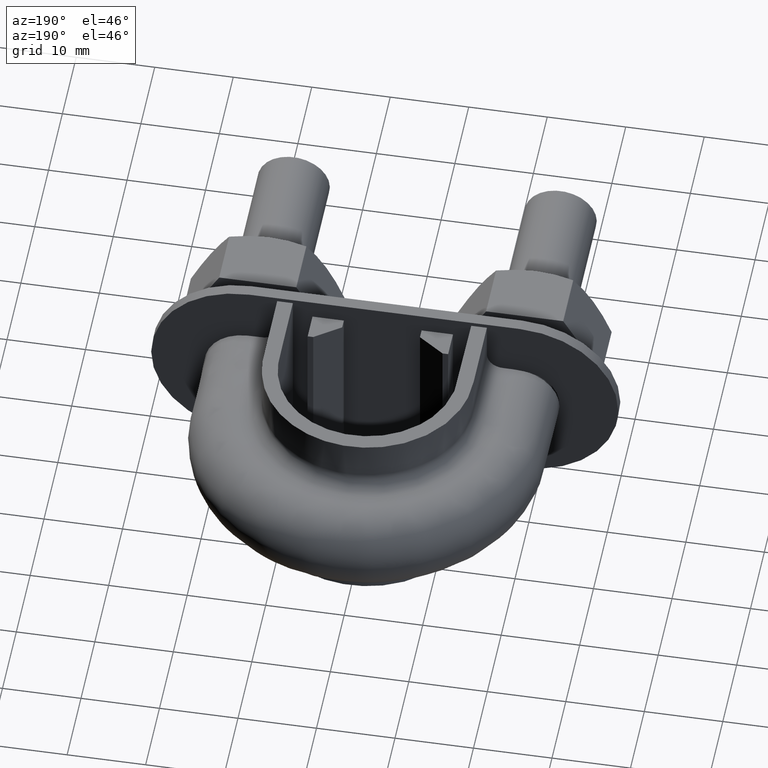
[diagram: clean part render]
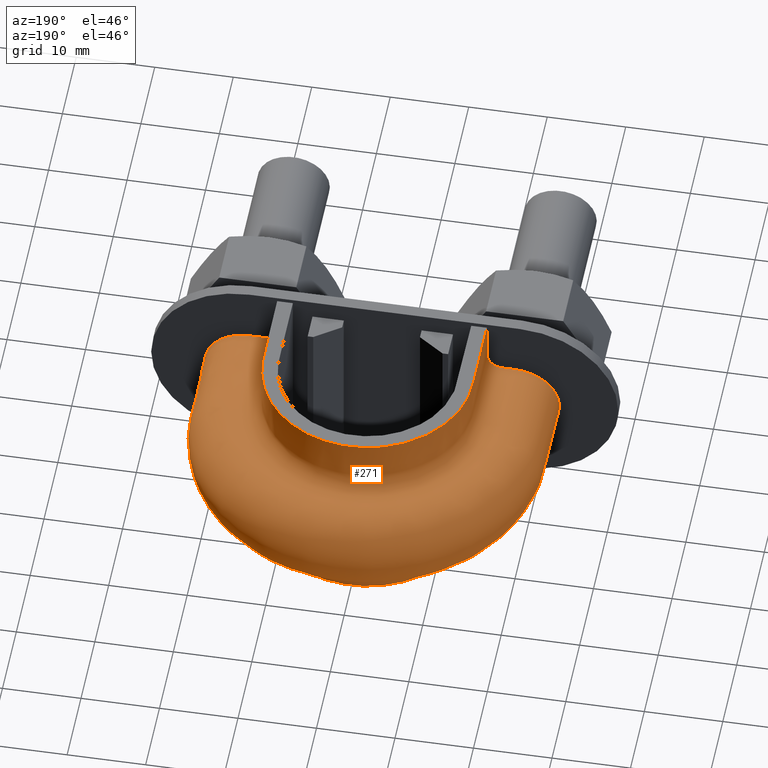
[diagram: same view with one face highlighted and labeled with its STEP entity id]
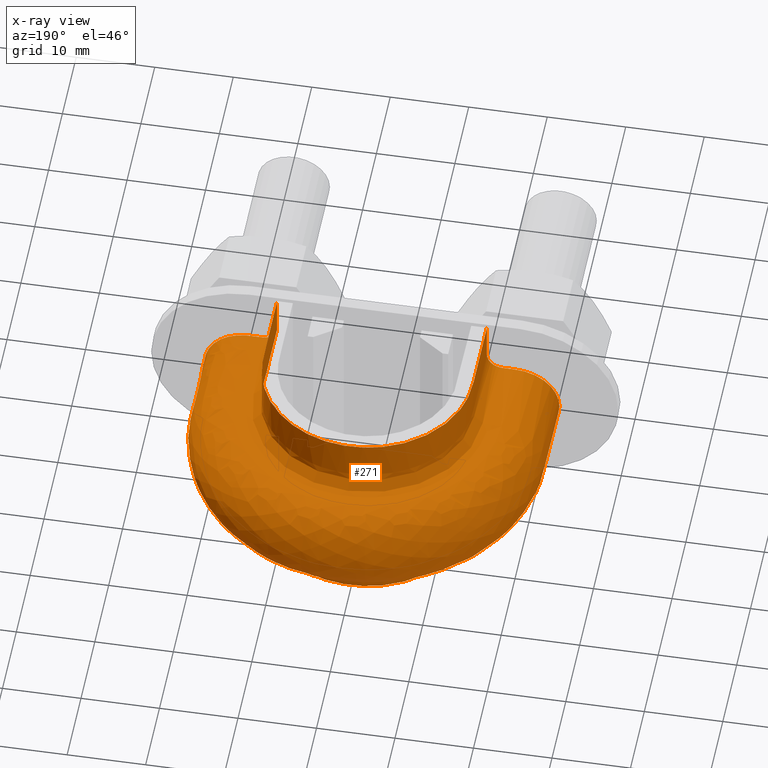
[diagram: x-ray of the same camera — body ghosted, the highlighted face saturated]
A machine part, auxiliary view. The second image highlights one B-rep face of the part: STEP entity #271.
The next image is the same camera in x-ray: the body ghosted, the highlighted face saturated — about 0% of this face is hidden behind the body in this view.
In plain terms, the highlighted face is a freeform B-spline surface patch.
Its self-contained STEP definition (entity closure, byte-faithful):
#271 = ADVANCED_FACE( '', ( #391 ), #392, .F. );
#391 = FACE_OUTER_BOUND( '', #649, .T. );
#392 = B_SPLINE_SURFACE_WITH_KNOTS( '', 3, 3, ( ( #650, #651, #652, #653, #654, #655, #656, #657, #658, #659, #660, #661, #662, #663, #664, #665, #666, #667, #668 ), ( #669, #670, #671, #672, #673, #674, #675, #676, #677, #678, #679, #680, #681, #682, #683, #684, #685, #686, #687 ), ( #688, #689, #690, #691, #692, #693, #694, #695, #696, #697, #698, #699, #700, #701, #702, #703, #704, #705, #706 ), ( #707, #708, #709, #710, #711, #712, #713, #714, #715, #716, #717, #718, #719, #720, #721, #722, #723, #724, #725 ), ( #726, #727, #728, #729, #730, #731, #732, #733, #734, #735, #736, #737, #738, #739, #740, #741, #742, #743, #744 ), ( #745, #746, #747, #748, #749, #750, #751, #752, #753, #754, #755, #756, #757, #758, #759, #760, #761, #762, #763 ), ( #764, #765, #766, #767, #768, #769, #770, #771, #772, #773, #774, #775, #776, #777, #778, #779, #780, #781, #782 ), ( #783, #784, #785, #786, #787, #788, #789, #790, #791, #792, #793, #794, #795, #796, #797, #798, #799, #800, #801 ), ( #802, #803, #804, #805, #806, #807, #808, #809, #810, #811, #812, #813, #814, #815, #816, #817, #818, #819, #820 ), ( #821, #822, #823, #824, #825, #826, #827, #828, #829, #830, #831, #832, #833, #834, #835, #836, #837, #838, #839 ), ( #840, #841, #842, #843, #844, #845, #846, #847, #848, #849, #850, #851, #852, #853, #854, #855, #856, #857, #858 ), ( #859, #860, #861, #862, #863, #864, #865, #866, #867, #868, #869, #870, #871, #872, #873, #874, #875, #876, #877 ), ( #878, #879, #880, #881, #882, #883, #884, #885, #886, #887, #888, #889, #890, #891, #892, #893, #894, #895, #896 ), ( #897, #898, #899, #900, #901, #902, #903, #904, #905, #906, #907, #908, #909, #910, #911, #912, #913, #914, #915 ), ( #916, #917, #918, #919, #920, #921, #922, #923, #924, #925, #926, #927, #928, #929, #930, #931, #932, #933, #934 ), ( #935, #936, #937, #938, #939, #940, #941, #942, #943, #944, #945, #946, #947, #948, #949, #950, #951, #952, #953 ), ( #954, #955, #956, #957, #958, #959, #960, #961, #962, #963, #964, #965, #966, #967, #968, #969, #970, #971, #972 ), ( #973, #974, #975, #976, #977, #978, #979, #980, #981, #982, #983, #984, #985, #986, #987, #988, #989, #990, #991 ), ( #992, #993, #994, #995, #996, #997, #998, #999, #1000, #1001, #1002, #1003, #1004, #1005, #1006, #1007, #1008, #1009, #1010 ), ( #1011, #1012, #1013, #1014, #1015, #1016, #1017, #1018, #1019, #1020, #1021, #1022, #1023, #1024, #1025, #1026, #1027, #1028, #1029 ), ( #1030, #1031, #1032, #1033, #1034, #1035, #1036, #1037, #1038, #1039, #1040, #1041, #1042, #1043, #1044, #1045, #1046, #1047, #1048 ), ( #1049, #1050, #1051, #1052, #1053, #1054, #1055, #1056, #1057, #1058, #1059, #1060, #1061, #1062, #1063, #1064, #1065, #1066, #1067 ), ( #1068, #1069, #1070, #1071, #1072, #1073, #1074, #1075, #1076, #1077, #1078, #1079, #1080, #1081, #1082, #1083, #1084, #1085, #1086 ), ( #1087, #1088, #1089, #1090, #1091, #1092, #1093, #1094, #1095, #1096, #1097, #1098, #1099, #1100, #1101, #1102, #1103, #1104, #1105 ), ( #1106, #1107, #1108, #1109, #1110, #1111, #1112, #1113, #1114, #1115, #1116, #1117, #1118, #1119, #1120, #1121, #1122, #1123, #1124 ), ( #1125, #1126, #1127, #1128, #1129, #1130, #1131, #1132, #1133, #1134, #1135, #1136, #1137, #1138, #1139, #1140, #1141, #1142, #1143 ), ( #1144, #1145, #1146, #1147, #1148, #1149, #1150, #1151, #1152, #1153, #1154, #1155, #1156, #1157, #1158, #1159, #1160, #1161, #1162 ), ( #1163, #1164, #1165, #1166, #1167, #1168, #1169, #1170, #1171, #1172, #1173, #1174, #1175, #1176, #1177, #1178, #1179, #1180, #1181 ), ( #1182, #1183, #1184, #1185, #1186, #1187, #1188, #1189, #1190, #1191, #1192, #1193, #1194, #1195, #1196, #1197, #1198, #1199, #1200 ), ( #1201, #1202, #1203, #1204, #1205, #1206, #1207, #1208, #1209, #1210, #1211, #1212, #1213, #1214, #1215, #1216, #1217, #1218, #1219 ), ( #1220, #1221, #1222, #1223, #1224, #1225, #1226, #1227, #1228, #1229, #1230, #1231, #1232, #1233, #1234, #1235, #1236, #1237, #1238 ) ), .UNSPECIFIED., .F., .F., .F., ( 4, 3, 1, 1, 1, 3, 3, 1, 1, 1, 3, 3, 1, 1, 1, 3, 4 ), ( 4, 3, 1, 1, 1, 3, 1, 1, 1, 3, 4 ), ( 0.736842105263158, 0.789473684210526, 0.842105263157895, 0.894736842105263, 0.947368421052632, 1.00000000000000, 1.05263157894737, 1.10526315789474, 1.15789473684211, 1.21052631578947, 1.26315789473684, 1.31578947368421, 1.36842105263158, 1.42105263157895, 1.47368421052632, 1.52631578947368, 1.57894736842105 ), ( 0.000000000000000, 1.00000000000000, 1.50000000000000, 2.00000000000000, 3.00000000000000, 3.50000000000000, 4.00000000000000, 5.00000000000000, 5.50000000000000, 6.00000000000000, 7.00000000000000 ), .UNSPECIFIED. );
#649 = EDGE_LOOP( '', ( #1849, #1850, #1851, #1852 ) );
#650 = CARTESIAN_POINT( '', ( -13.3600000000000, 29.5400000000000, 12.5000000000000 ) );
#651 = CARTESIAN_POINT( '', ( -13.3600000000000, 33.9066666666667, 12.5000000000000 ) );
#652 = CARTESIAN_POINT( '', ( -13.3600000000000, 38.2733333333333, 12.5000000000000 ) );
#653 = CARTESIAN_POINT( '', ( -13.3600000000000, 42.6400000000000, 12.5000000000000 ) );
#654 = CARTESIAN_POINT( '', ( -13.3600000000000, 44.0243844002116, 12.5000000000000 ) );
#655 = CARTESIAN_POINT( '', ( -12.9030271653615, 46.8385025897862, 12.5000000000000 ) );
#656 = CARTESIAN_POINT( '', ( -10.3559347208131, 51.8876580329545, 12.5000000000000 ) );
#657 = CARTESIAN_POINT( '', ( -5.59795283105407, 55.3461150577033, 12.5000000000000 ) );
#658 = CARTESIAN_POINT( '', ( -1.39948820776351, 55.9945757498437, 12.5000000000000 ) );
#659 = CARTESIAN_POINT( '', ( 1.29286634902035E-014, 55.9945757498437, 12.5000000000000 ) );
#660 = CARTESIAN_POINT( '', ( 1.39948820776353, 55.9945757498437, 12.5000000000000 ) );
#661 = CARTESIAN_POINT( '', ( 5.59795283105410, 55.3461150577033, 12.5000000000000 ) );
#662 = CARTESIAN_POINT( '', ( 10.3559347208131, 51.8876580329545, 12.5000000000000 ) );
#663 = CARTESIAN_POINT( '', ( 12.9030271653616, 46.8385025897862, 12.5000000000000 ) );
#664 = CARTESIAN_POINT( '', ( 13.3600000000000, 44.0243844002116, 12.5000000000000 ) );
#665 = CARTESIAN_POINT( '', ( 13.3600000000000, 42.6400000000000, 12.5000000000000 ) );
#666 = CARTESIAN_POINT( '', ( 13.3600000000000, 38.2733333333333, 12.5000000000000 ) );
#667 = CARTESIAN_POINT( '', ( 13.3600000000000, 33.9066666666667, 12.5000000000000 ) );
#668 = CARTESIAN_POINT( '', ( 13.3600000000000, 29.5400000000000, 12.5000000000000 ) );
#669 = CARTESIAN_POINT( '', ( -13.3600000000000, 29.5399999999999, 10.8666666666666 ) );
#670 = CARTESIAN_POINT( '', ( -13.3600000000000, 33.9066666666666, 10.8666666666666 ) );
#671 = CARTESIAN_POINT( '', ( -13.3600000000000, 38.2733333333332, 10.8666666666666 ) );
#672 = CARTESIAN_POINT( '', ( -13.3600000000000, 42.6399999999999, 10.8666666666666 ) );
#673 = CARTESIAN_POINT( '', ( -13.3600000000000, 44.0243844002115, 10.8666666666666 ) );
#674 = CARTESIAN_POINT( '', ( -12.9030271653615, 46.8385025897861, 10.8666666666666 ) );
#675 = CARTESIAN_POINT( '', ( -10.3559347208130, 51.8876580329544, 10.8666666666666 ) );
#676 = CARTESIAN_POINT( '', ( -5.59795283105404, 55.3461150577032, 10.8666666666666 ) );
#677 = CARTESIAN_POINT( '', ( -1.39948820776350, 55.9945757498435, 10.8666666666666 ) );
#678 = CARTESIAN_POINT( '', ( 1.63981104421571E-014, 55.9945757498435, 10.8666666666666 ) );
#679 = CARTESIAN_POINT( '', ( 1.39948820776353, 55.9945757498435, 10.8666666666666 ) );
#680 = CARTESIAN_POINT( '', ( 5.59795283105408, 55.3461150577031, 10.8666666666666 ) );
#681 = CARTESIAN_POINT( '', ( 10.3559347208130, 51.8876580329544, 10.8666666666666 ) );
#682 = CARTESIAN_POINT( '', ( 12.9030271653615, 46.8385025897861, 10.8666666666666 ) );
#683 = CARTESIAN_POINT( '', ( 13.3600000000000, 44.0243844002115, 10.8666666666666 ) );
#684 = CARTESIAN_POINT( '', ( 13.3600000000000, 42.6399999999999, 10.8666666666666 ) );
#685 = CARTESIAN_POINT( '', ( 13.3600000000000, 38.2733333333333, 10.8666666666666 ) );
#686 = CARTESIAN_POINT( '', ( 13.3600000000000, 33.9066666666666, 10.8666666666666 ) );
#687 = CARTESIAN_POINT( '', ( 13.3600000000000, 29.5399999999999, 10.8666666666666 ) );
#688 = CARTESIAN_POINT( '', ( -13.3600000000001, 29.5400000000001, 9.23333333333334 ) );
#689 = CARTESIAN_POINT( '', ( -13.3600000000001, 33.9066666666668, 9.23333333333334 ) );
#690 = CARTESIAN_POINT( '', ( -13.3600000000001, 38.2733333333335, 9.23333333333334 ) );
#691 = CARTESIAN_POINT( '', ( -13.3600000000001, 42.6400000000002, 9.23333333333334 ) );
#692 = CARTESIAN_POINT( '', ( -13.3600000000001, 44.0243844002118, 9.23333333333334 ) );
#693 = CARTESIAN_POINT( '', ( -12.9030271653616, 46.8385025897865, 9.23333333333335 ) );
#694 = CARTESIAN_POINT( '', ( -10.3559347208131, 51.8876580329547, 9.23333333333335 ) );
#695 = CARTESIAN_POINT( '', ( -5.59795283105408, 55.3461150577035, 9.23333333333334 ) );
#696 = CARTESIAN_POINT( '', ( -1.39948820776351, 55.9945757498439, 9.23333333333334 ) );
#697 = CARTESIAN_POINT( '', ( 1.61812700076601E-014, 55.9945757498440, 9.23333333333334 ) );
#698 = CARTESIAN_POINT( '', ( 1.39948820776354, 55.9945757498439, 9.23333333333334 ) );
#699 = CARTESIAN_POINT( '', ( 5.59795283105412, 55.3461150577035, 9.23333333333334 ) );
#700 = CARTESIAN_POINT( '', ( 10.3559347208131, 51.8876580329547, 9.23333333333335 ) );
#701 = CARTESIAN_POINT( '', ( 12.9030271653616, 46.8385025897864, 9.23333333333334 ) );
#702 = CARTESIAN_POINT( '', ( 13.3600000000001, 44.0243844002118, 9.23333333333334 ) );
#703 = CARTESIAN_POINT( '', ( 13.3600000000001, 42.6400000000002, 9.23333333333334 ) );
#704 = CARTESIAN_POINT( '', ( 13.3600000000001, 38.2733333333335, 9.23333333333334 ) );
#705 = CARTESIAN_POINT( '', ( 13.3600000000001, 33.9066666666668, 9.23333333333334 ) );
#706 = CARTESIAN_POINT( '', ( 13.3600000000001, 29.5400000000002, 9.23333333333334 ) );
#707 = CARTESIAN_POINT( '', ( -13.3599999999999, 29.5399999999998, 7.59999999999992 ) );
#708 = CARTESIAN_POINT( '', ( -13.3599999999999, 33.9066666666665, 7.59999999999992 ) );
#709 = CARTESIAN_POINT( '', ( -13.3599999999999, 38.2733333333331, 7.59999999999992 ) );
#710 = CARTESIAN_POINT( '', ( -13.3599999999999, 42.6399999999997, 7.59999999999992 ) );
#711 = CARTESIAN_POINT( '', ( -13.3599999999999, 44.0243844002113, 7.59999999999992 ) );
#712 = CARTESIAN_POINT( '', ( -12.9030271653614, 46.8385025897859, 7.59999999999993 ) );
#713 = CARTESIAN_POINT( '', ( -10.3559347208130, 51.8876580329541, 7.59999999999992 ) );
#714 = CARTESIAN_POINT( '', ( -5.59795283105402, 55.3461150577029, 7.59999999999992 ) );
#715 = CARTESIAN_POINT( '', ( -1.39948820776349, 55.9945757498433, 7.59999999999992 ) );
#716 = CARTESIAN_POINT( '', ( 1.61812700076599E-014, 55.9945757498433, 7.59999999999992 ) );
#717 = CARTESIAN_POINT( '', ( 1.39948820776352, 55.9945757498433, 7.59999999999992 ) );
#718 = CARTESIAN_POINT( '', ( 5.59795283105405, 55.3461150577029, 7.59999999999992 ) );
#719 = CARTESIAN_POINT( '', ( 10.3559347208130, 51.8876580329541, 7.59999999999992 ) );
#720 = CARTESIAN_POINT( '', ( 12.9030271653615, 46.8385025897859, 7.59999999999992 ) );
#721 = CARTESIAN_POINT( '', ( 13.3599999999999, 44.0243844002113, 7.59999999999992 ) );
#722 = CARTESIAN_POINT( '', ( 13.3599999999999, 42.6399999999997, 7.59999999999992 ) );
#723 = CARTESIAN_POINT( '', ( 13.3599999999999, 38.2733333333331, 7.59999999999992 ) );
#724 = CARTESIAN_POINT( '', ( 13.3599999999999, 33.9066666666665, 7.59999999999992 ) );
#725 = CARTESIAN_POINT( '', ( 13.3599999999999, 29.5399999999998, 7.59999999999992 ) );
#726 = CARTESIAN_POINT( '', ( -13.3600000000000, 29.5400000000001, 7.33823584172333 ) );
#727 = CARTESIAN_POINT( '', ( -13.3600000000000, 33.9066666666668, 7.33823584172333 ) );
#728 = CARTESIAN_POINT( '', ( -13.3600000000000, 38.2733333333335, 7.33823584172334 ) );
#729 = CARTESIAN_POINT( '', ( -13.3600000000000, 42.6400000000002, 7.33823584172334 ) );
#730 = CARTESIAN_POINT( '', ( -13.3600000000000, 44.0243844002117, 7.33823584172334 ) );
#731 = CARTESIAN_POINT( '', ( -12.9030271653616, 46.8385025897864, 7.33823584172334 ) );
#732 = CARTESIAN_POINT( '', ( -10.3559347208131, 51.8876580329546, 7.33823584172333 ) );
#733 = CARTESIAN_POINT( '', ( -5.59795283105408, 55.3461150577035, 7.33823584172333 ) );
#734 = CARTESIAN_POINT( '', ( -1.39948820776351, 55.9945757498439, 7.33823584172334 ) );
#735 = CARTESIAN_POINT( '', ( 1.42297060971862E-014, 55.9945757498439, 7.33823584172333 ) );
#736 = CARTESIAN_POINT( '', ( 1.39948820776354, 55.9945757498439, 7.33823584172333 ) );
#737 = CARTESIAN_POINT( '', ( 5.59795283105411, 55.3461150577035, 7.33823584172334 ) );
#738 = CARTESIAN_POINT( '', ( 10.3559347208131, 51.8876580329546, 7.33823584172334 ) );
#739 = CARTESIAN_POINT( '', ( 12.9030271653616, 46.8385025897864, 7.33823584172333 ) );
#740 = CARTESIAN_POINT( '', ( 13.3600000000000, 44.0243844002118, 7.33823584172334 ) );
#741 = CARTESIAN_POINT( '', ( 13.3600000000000, 42.6400000000002, 7.33823584172334 ) );
#742 = CARTESIAN_POINT( '', ( 13.3600000000000, 38.2733333333335, 7.33823584172334 ) );
#743 = CARTESIAN_POINT( '', ( 13.3600000000000, 33.9066666666668, 7.33823584172333 ) );
#744 = CARTESIAN_POINT( '', ( 13.3600000000000, 29.5400000000001, 7.33823584172333 ) );
#745 = CARTESIAN_POINT( '', ( -13.4641362568359, 29.5399999999999, 6.81470752516997 ) );
#746 = CARTESIAN_POINT( '', ( -13.4641362568359, 33.9066666666666, 6.81470752516997 ) );
#747 = CARTESIAN_POINT( '', ( -13.4641362568359, 38.2733333333333, 6.81470752516997 ) );
#748 = CARTESIAN_POINT( '', ( -13.4641362568359, 42.6399999999999, 6.81470752516997 ) );
#749 = CARTESIAN_POINT( '', ( -13.4641362568359, 44.0356630405241, 6.81470752516997 ) );
#750 = CARTESIAN_POINT( '', ( -13.0037035828245, 46.8710411163186, 6.81470752516997 ) );
#751 = CARTESIAN_POINT( '', ( -10.4365958449970, 51.9598471044099, 6.81470752516997 ) );
#752 = CARTESIAN_POINT( '', ( -5.64159531004414, 55.4451545233495, 6.81470752516997 ) );
#753 = CARTESIAN_POINT( '', ( -1.41039882751103, 56.0986496644007, 6.81470752516997 ) );
#754 = CARTESIAN_POINT( '', ( 1.33750893169011E-014, 56.0986496644007, 6.81470752516997 ) );
#755 = CARTESIAN_POINT( '', ( 1.41039882751105, 56.0986496644007, 6.81470752516997 ) );
#756 = CARTESIAN_POINT( '', ( 5.64159531004417, 55.4451545233495, 6.81470752516997 ) );
#757 = CARTESIAN_POINT( '', ( 10.4365958449970, 51.9598471044100, 6.81470752516997 ) );
#758 = CARTESIAN_POINT( '', ( 13.0037035828246, 46.8710411163186, 6.81470752516997 ) );
#759 = CARTESIAN_POINT( '', ( 13.4641362568359, 44.0356630405241, 6.81470752516997 ) );
#760 = CARTESIAN_POINT( '', ( 13.4641362568359, 42.6399999999999, 6.81470752516997 ) );
#761 = CARTESIAN_POINT( '', ( 13.4641362568359, 38.2733333333333, 6.81470752516997 ) );
#762 = CARTESIAN_POINT( '', ( 13.4641362568359, 33.9066666666666, 6.81470752516997 ) );
#763 = CARTESIAN_POINT( '', ( 13.4641362568359, 29.5399999999999, 6.81470752516997 ) );
#764 = CARTESIAN_POINT( '', ( -13.9089687109389, 29.5400000000000, 6.14896871093885 ) );
#765 = CARTESIAN_POINT( '', ( -13.9089687109389, 33.9066666666667, 6.14896871093885 ) );
#766 = CARTESIAN_POINT( '', ( -13.9089687109389, 38.2733333333333, 6.14896871093885 ) );
#767 = CARTESIAN_POINT( '', ( -13.9089687109389, 42.6400000000000, 6.14896871093885 ) );
#768 = CARTESIAN_POINT( '', ( -13.9089687109389, 44.0838413158115, 6.14896871093885 ) );
#769 = CARTESIAN_POINT( '', ( -13.4337568535211, 47.0100339421616, 6.14896871093886 ) );
#770 = CARTESIAN_POINT( '', ( -10.7811510163818, 52.2682127283597, 6.14896871093885 ) );
#771 = CARTESIAN_POINT( '', ( -5.82802020779033, 55.8682153274838, 6.14896871093885 ) );
#772 = CARTESIAN_POINT( '', ( -1.45700505194757, 56.5432158148196, 6.14896871093885 ) );
#773 = CARTESIAN_POINT( '', ( 1.38632120391450E-014, 56.5432158148196, 6.14896871093885 ) );
#774 = CARTESIAN_POINT( '', ( 1.45700505194760, 56.5432158148196, 6.14896871093885 ) );
#775 = CARTESIAN_POINT( '', ( 5.82802020779036, 55.8682153274838, 6.14896871093885 ) );
#776 = CARTESIAN_POINT( '', ( 10.7811510163818, 52.2682127283597, 6.14896871093885 ) );
#777 = CARTESIAN_POINT( '', ( 13.4337568535212, 47.0100339421616, 6.14896871093885 ) );
#778 = CARTESIAN_POINT( '', ( 13.9089687109389, 44.0838413158115, 6.14896871093885 ) );
#779 = CARTESIAN_POINT( '', ( 13.9089687109389, 42.6400000000000, 6.14896871093885 ) );
#780 = CARTESIAN_POINT( '', ( 13.9089687109389, 38.2733333333333, 6.14896871093885 ) );
#781 = CARTESIAN_POINT( '', ( 13.9089687109389, 33.9066666666667, 6.14896871093885 ) );
#782 = CARTESIAN_POINT( '', ( 13.9089687109389, 29.5400000000000, 6.14896871093885 ) );
#783 = CARTESIAN_POINT( '', ( -14.5747075251700, 29.5400000000000, 5.70413625683587 ) );
#784 = CARTESIAN_POINT( '', ( -14.5747075251700, 33.9066666666667, 5.70413625683587 ) );
#785 = CARTESIAN_POINT( '', ( -14.5747075251700, 38.2733333333333, 5.70413625683588 ) );
#786 = CARTESIAN_POINT( '', ( -14.5747075251700, 42.6400000000000, 5.70413625683588 ) );
#787 = CARTESIAN_POINT( '', ( -14.5747075251700, 44.1559452002416, 5.70413625683588 ) );
#788 = CARTESIAN_POINT( '', ( -14.0773770566988, 47.2180514062872, 5.70413625683588 ) );
#789 = CARTESIAN_POINT( '', ( -11.2968142714324, 52.7297144981707, 5.70413625683588 ) );
#790 = CARTESIAN_POINT( '', ( -6.10702478406158, 56.5013705649089, 5.70413625683587 ) );
#791 = CARTESIAN_POINT( '', ( -1.52675619601538, 57.2085560774223, 5.70413625683587 ) );
#792 = CARTESIAN_POINT( '', ( 1.28604878579632E-014, 57.2085560774224, 5.70413625683588 ) );
#793 = CARTESIAN_POINT( '', ( 1.52675619601541, 57.2085560774224, 5.70413625683588 ) );
#794 = CARTESIAN_POINT( '', ( 6.10702478406160, 56.5013705649089, 5.70413625683588 ) );
#795 = CARTESIAN_POINT( '', ( 11.2968142714324, 52.7297144981707, 5.70413625683588 ) );
#796 = CARTESIAN_POINT( '', ( 14.0773770566988, 47.2180514062872, 5.70413625683588 ) );
#797 = CARTESIAN_POINT( '', ( 14.5747075251700, 44.1559452002416, 5.70413625683588 ) );
#798 = CARTESIAN_POINT( '', ( 14.5747075251700, 42.6400000000000, 5.70413625683588 ) );
#799 = CARTESIAN_POINT( '', ( 14.5747075251700, 38.2733333333333, 5.70413625683588 ) );
#800 = CARTESIAN_POINT( '', ( 14.5747075251700, 33.9066666666667, 5.70413625683587 ) );
#801 = CARTESIAN_POINT( '', ( 14.5747075251700, 29.5400000000000, 5.70413625683587 ) );
#802 = CARTESIAN_POINT( '', ( -15.0982358417233, 29.5400000000000, 5.59999999999997 ) );
#803 = CARTESIAN_POINT( '', ( -15.0982358417233, 33.9066666666667, 5.59999999999997 ) );
#804 = CARTESIAN_POINT( '', ( -15.0982358417233, 38.2733333333333, 5.59999999999997 ) );
#805 = CARTESIAN_POINT( '', ( -15.0982358417233, 42.6400000000000, 5.59999999999997 ) );
#806 = CARTESIAN_POINT( '', ( -15.0982358417233, 44.2126467541029, 5.59999999999997 ) );
#807 = CARTESIAN_POINT( '', ( -14.5835115861365, 47.3816336257394, 5.59999999999997 ) );
#808 = CARTESIAN_POINT( '', ( -11.7023251265218, 53.0926334679991, 5.59999999999997 ) );
#809 = CARTESIAN_POINT( '', ( -6.32643034222278, 56.9992755818320, 5.59999999999997 ) );
#810 = CARTESIAN_POINT( '', ( -1.58160758555568, 57.7317709781757, 5.59999999999997 ) );
#811 = CARTESIAN_POINT( '', ( 1.39003430423879E-014, 57.7317709781757, 5.59999999999997 ) );
#812 = CARTESIAN_POINT( '', ( 1.58160758555571, 57.7317709781757, 5.59999999999997 ) );
#813 = CARTESIAN_POINT( '', ( 6.32643034222281, 56.9992755818320, 5.59999999999997 ) );
#814 = CARTESIAN_POINT( '', ( 11.7023251265218, 53.0926334679991, 5.59999999999997 ) );
#815 = CARTESIAN_POINT( '', ( 14.5835115861365, 47.3816336257394, 5.59999999999997 ) );
#816 = CARTESIAN_POINT( '', ( 15.0982358417233, 44.2126467541029, 5.59999999999997 ) );
#817 = CARTESIAN_POINT( '', ( 15.0982358417233, 42.6400000000000, 5.59999999999997 ) );
#818 = CARTESIAN_POINT( '', ( 15.0982358417233, 38.2733333333333, 5.59999999999997 ) );
#819 = CARTESIAN_POINT( '', ( 15.0982358417233, 33.9066666666667, 5.59999999999997 ) );
#820 = CARTESIAN_POINT( '', ( 15.0982358417233, 29.5400000000000, 5.59999999999997 ) );
#821 = CARTESIAN_POINT( '', ( -15.3600000000000, 29.5400000000000, 5.59999999999999 ) );
#822 = CARTESIAN_POINT( '', ( -15.3600000000000, 33.9066666666667, 5.59999999999999 ) );
#823 = CARTESIAN_POINT( '', ( -15.3600000000000, 38.2733333333333, 5.59999999999999 ) );
#824 = CARTESIAN_POINT( '', ( -15.3600000000000, 42.6400000000000, 5.59999999999999 ) );
#825 = CARTESIAN_POINT( '', ( -15.3600000000000, 44.2409975310335, 5.59999999999999 ) );
#826 = CARTESIAN_POINT( '', ( -14.8365788508553, 47.4634247354655, 5.59999999999999 ) );
#827 = CARTESIAN_POINT( '', ( -11.9050805540665, 53.2740929529133, 5.59999999999999 ) );
#828 = CARTESIAN_POINT( '', ( -6.43613312130337, 57.2482280902935, 5.59999999999999 ) );
#829 = CARTESIAN_POINT( '', ( -1.60903328032583, 57.9933784285523, 5.59999999999999 ) );
#830 = CARTESIAN_POINT( '', ( 1.32818583534905E-014, 57.9933784285523, 5.59999999999999 ) );
#831 = CARTESIAN_POINT( '', ( 1.60903328032586, 57.9933784285523, 5.59999999999999 ) );
#832 = CARTESIAN_POINT( '', ( 6.43613312130340, 57.2482280902935, 5.59999999999999 ) );
#833 = CARTESIAN_POINT( '', ( 11.9050805540665, 53.2740929529133, 5.59999999999999 ) );
#834 = CARTESIAN_POINT( '', ( 14.8365788508553, 47.4634247354655, 5.59999999999999 ) );
#835 = CARTESIAN_POINT( '', ( 15.3600000000000, 44.2409975310335, 5.59999999999999 ) );
#836 = CARTESIAN_POINT( '', ( 15.3600000000000, 42.6400000000000, 5.59999999999999 ) );
#837 = CARTESIAN_POINT( '', ( 15.3600000000000, 38.2733333333333, 5.59999999999999 ) );
#838 = CARTESIAN_POINT( '', ( 15.3600000000000, 33.9066666666667, 5.59999999999999 ) );
#839 = CARTESIAN_POINT( '', ( 15.3600000000000, 29.5400000000000, 5.59999999999999 ) );
#840 = CARTESIAN_POINT( '', ( -15.9066666666666, 29.5400000000000, 5.59999999999999 ) );
#841 = CARTESIAN_POINT( '', ( -15.9066666666666, 33.9066666666667, 5.59999999999999 ) );
#842 = CARTESIAN_POINT( '', ( -15.9066666666666, 38.2733333333333, 5.59999999999999 ) );
#843 = CARTESIAN_POINT( '', ( -15.9066666666666, 42.6400000000000, 5.59999999999999 ) );
#844 = CARTESIAN_POINT( '', ( -15.9066666666666, 44.3002051201248, 5.59999999999999 ) );
#845 = CARTESIAN_POINT( '', ( -15.3650829782236, 47.6342367886178, 5.59999999999999 ) );
#846 = CARTESIAN_POINT( '', ( -12.3285137484891, 53.6530518310353, 5.59999999999999 ) );
#847 = CARTESIAN_POINT( '', ( -6.66523573397152, 57.7681389858683, 5.59999999999999 ) );
#848 = CARTESIAN_POINT( '', ( -1.66630893349287, 58.5397178273994, 5.59999999999999 ) );
#849 = CARTESIAN_POINT( '', ( 1.30235027716620E-014, 58.5397178273994, 5.59999999999999 ) );
#850 = CARTESIAN_POINT( '', ( 1.66630893349290, 58.5397178273994, 5.59999999999999 ) );
#851 = CARTESIAN_POINT( '', ( 6.66523573397155, 57.7681389858682, 5.59999999999999 ) );
#852 = CARTESIAN_POINT( '', ( 12.3285137484891, 53.6530518310353, 5.59999999999999 ) );
#853 = CARTESIAN_POINT( '', ( 15.3650829782236, 47.6342367886178, 5.59999999999999 ) );
#854 = CARTESIAN_POINT( '', ( 15.9066666666667, 44.3002051201248, 5.59999999999999 ) );
#855 = CARTESIAN_POINT( '', ( 15.9066666666667, 42.6400000000000, 5.59999999999999 ) );
#856 = CARTESIAN_POINT( '', ( 15.9066666666667, 38.2733333333333, 5.59999999999999 ) );
#857 = CARTESIAN_POINT( '', ( 15.9066666666667, 33.9066666666667, 5.59999999999999 ) );
#858 = CARTESIAN_POINT( '', ( 15.9066666666667, 29.5400000000000, 5.59999999999999 ) );
#859 = CARTESIAN_POINT( '', ( -16.4533333333333, 29.5400000000000, 5.59999999999998 ) );
#860 = CARTESIAN_POINT( '', ( -16.4533333333333, 33.9066666666666, 5.59999999999998 ) );
#861 = CARTESIAN_POINT( '', ( -16.4533333333333, 38.2733333333333, 5.59999999999999 ) );
#862 = CARTESIAN_POINT( '', ( -16.4533333333333, 42.6400000000000, 5.59999999999999 ) );
#863 = CARTESIAN_POINT( '', ( -16.4533333333333, 44.3594127092162, 5.59999999999999 ) );
#864 = CARTESIAN_POINT( '', ( -15.8935871055919, 47.8050488417702, 5.59999999999999 ) );
#865 = CARTESIAN_POINT( '', ( -12.7519469429117, 54.0320107091574, 5.59999999999998 ) );
#866 = CARTESIAN_POINT( '', ( -6.89433834663968, 58.2880498814429, 5.59999999999998 ) );
#867 = CARTESIAN_POINT( '', ( -1.72358458665991, 59.0860572262464, 5.59999999999999 ) );
#868 = CARTESIAN_POINT( '', ( 1.40661897968161E-014, 59.0860572262464, 5.59999999999999 ) );
#869 = CARTESIAN_POINT( '', ( 1.72358458665994, 59.0860572262464, 5.59999999999999 ) );
#870 = CARTESIAN_POINT( '', ( 6.89433834663971, 58.2880498814429, 5.59999999999999 ) );
#871 = CARTESIAN_POINT( '', ( 12.7519469429117, 54.0320107091575, 5.59999999999999 ) );
#872 = CARTESIAN_POINT( '', ( 15.8935871055919, 47.8050488417702, 5.59999999999999 ) );
#873 = CARTESIAN_POINT( '', ( 16.4533333333333, 44.3594127092162, 5.59999999999999 ) );
#874 = CARTESIAN_POINT( '', ( 16.4533333333333, 42.6400000000000, 5.59999999999999 ) );
#875 = CARTESIAN_POINT( '', ( 16.4533333333333, 38.2733333333333, 5.59999999999999 ) );
#876 = CARTESIAN_POINT( '', ( 16.4533333333333, 33.9066666666666, 5.59999999999998 ) );
#877 = CARTESIAN_POINT( '', ( 16.4533333333333, 29.5400000000000, 5.59999999999998 ) );
#878 = CARTESIAN_POINT( '', ( -17.0000000000000, 29.5400000000000, 5.59999999999999 ) );
#879 = CARTESIAN_POINT( '', ( -17.0000000000000, 33.9066666666667, 5.59999999999999 ) );
#880 = CARTESIAN_POINT( '', ( -17.0000000000000, 38.2733333333333, 5.59999999999999 ) );
#881 = CARTESIAN_POINT( '', ( -17.0000000000000, 42.6400000000000, 5.59999999999999 ) );
#882 = CARTESIAN_POINT( '', ( -17.0000000000000, 44.4186202983075, 5.59999999999999 ) );
#883 = CARTESIAN_POINT( '', ( -16.4220912329602, 47.9758608949225, 5.59999999999999 ) );
#884 = CARTESIAN_POINT( '', ( -13.1753801373343, 54.4109695872795, 5.59999999999999 ) );
#885 = CARTESIAN_POINT( '', ( -7.12344095930783, 58.8079607770176, 5.59999999999999 ) );
#886 = CARTESIAN_POINT( '', ( -1.78086023982695, 59.6323966250935, 5.59999999999999 ) );
#887 = CARTESIAN_POINT( '', ( 1.34825735632419E-014, 59.6323966250935, 5.59999999999999 ) );
#888 = CARTESIAN_POINT( '', ( 1.78086023982698, 59.6323966250935, 5.59999999999999 ) );
#889 = CARTESIAN_POINT( '', ( 7.12344095930786, 58.8079607770176, 5.59999999999999 ) );
#890 = CARTESIAN_POINT( '', ( 13.1753801373344, 54.4109695872796, 5.59999999999999 ) );
#891 = CARTESIAN_POINT( '', ( 16.4220912329603, 47.9758608949225, 5.59999999999999 ) );
#892 = CARTESIAN_POINT( '', ( 17.0000000000000, 44.4186202983075, 5.59999999999999 ) );
#893 = CARTESIAN_POINT( '', ( 17.0000000000000, 42.6400000000000, 5.59999999999999 ) );
#894 = CARTESIAN_POINT( '', ( 17.0000000000000, 38.2733333333333, 5.59999999999999 ) );
#895 = CARTESIAN_POINT( '', ( 17.0000000000000, 33.9066666666667, 5.59999999999999 ) );
#896 = CARTESIAN_POINT( '', ( 17.0000000000000, 29.5400000000000, 5.59999999999999 ) );
#897 = CARTESIAN_POINT( '', ( -18.4627416997970, 29.5400000000000, 5.59999999999999 ) );
#898 = CARTESIAN_POINT( '', ( -18.4627416997970, 33.9066666666667, 5.59999999999999 ) );
#899 = CARTESIAN_POINT( '', ( -18.4627416997970, 38.2733333333333, 5.59999999999999 ) );
#900 = CARTESIAN_POINT( '', ( -18.4627416997969, 42.6400000000000, 5.59999999999999 ) );
#901 = CARTESIAN_POINT( '', ( -18.4627416997969, 44.5770448278959, 5.59999999999999 ) );
#902 = CARTESIAN_POINT( '', ( -17.8362345725025, 48.4329107357284, 5.59999999999999 ) );
#903 = CARTESIAN_POINT( '', ( -14.3083802420176, 55.4249676730187, 5.59999999999999 ) );
#904 = CARTESIAN_POINT( '', ( -7.73646159055563, 60.1991108022661, 5.59999999999998 ) );
#905 = CARTESIAN_POINT( '', ( -1.93411539763890, 61.0942626390001, 5.59999999999998 ) );
#906 = CARTESIAN_POINT( '', ( 1.46373765593856E-014, 61.0942626390001, 5.59999999999998 ) );
#907 = CARTESIAN_POINT( '', ( 1.93411539763893, 61.0942626390000, 5.59999999999998 ) );
#908 = CARTESIAN_POINT( '', ( 7.73646159055566, 60.1991108022662, 5.59999999999999 ) );
#909 = CARTESIAN_POINT( '', ( 14.3083802420176, 55.4249676730187, 5.59999999999999 ) );
#910 = CARTESIAN_POINT( '', ( 17.8362345725025, 48.4329107357284, 5.59999999999998 ) );
#911 = CARTESIAN_POINT( '', ( 18.4627416997970, 44.5770448278959, 5.59999999999999 ) );
#912 = CARTESIAN_POINT( '', ( 18.4627416997970, 42.6400000000000, 5.59999999999999 ) );
#913 = CARTESIAN_POINT( '', ( 18.4627416997970, 38.2733333333333, 5.59999999999999 ) );
#914 = CARTESIAN_POINT( '', ( 18.4627416997970, 33.9066666666667, 5.59999999999999 ) );
#915 = CARTESIAN_POINT( '', ( 18.4627416997970, 29.5400000000000, 5.59999999999999 ) );
#916 = CARTESIAN_POINT( '', ( -21.3882250993909, 29.5400000000000, 4.38822509939083 ) );
#917 = CARTESIAN_POINT( '', ( -21.3882250993909, 33.9066666666667, 4.38822509939083 ) );
#918 = CARTESIAN_POINT( '', ( -21.3882250993909, 38.2733333333333, 4.38822509939084 ) );
#919 = CARTESIAN_POINT( '', ( -21.3882250993909, 42.6400000000000, 4.38822509939084 ) );
#920 = CARTESIAN_POINT( '', ( -21.3882250993909, 44.8938938870727, 4.38822509939084 ) );
#921 = CARTESIAN_POINT( '', ( -20.6645212515869, 49.3470104173401, 4.38822509939084 ) );
#922 = CARTESIAN_POINT( '', ( -16.5743804513841, 57.4529638444972, 4.38822509939084 ) );
#923 = CARTESIAN_POINT( '', ( -8.96250285305124, 62.9814108527633, 4.38822509939084 ) );
#924 = CARTESIAN_POINT( '', ( -2.24062571326280, 64.0179946668131, 4.38822509939084 ) );
#925 = CARTESIAN_POINT( '', ( 1.58627803791874E-014, 64.0179946668131, 4.38822509939084 ) );
#926 = CARTESIAN_POINT( '', ( 2.24062571326283, 64.0179946668131, 4.38822509939084 ) );
#927 = CARTESIAN_POINT( '', ( 8.96250285305126, 62.9814108527632, 4.38822509939084 ) );
#928 = CARTESIAN_POINT( '', ( 16.5743804513842, 57.4529638444972, 4.38822509939084 ) );
#929 = CARTESIAN_POINT( '', ( 20.6645212515870, 49.3470104173400, 4.38822509939084 ) );
#930 = CARTESIAN_POINT( '', ( 21.3882250993909, 44.8938938870727, 4.38822509939084 ) );
#931 = CARTESIAN_POINT( '', ( 21.3882250993909, 42.6400000000000, 4.38822509939084 ) );
#932 = CARTESIAN_POINT( '', ( 21.3882250993909, 38.2733333333333, 4.38822509939084 ) );
#933 = CARTESIAN_POINT( '', ( 21.3882250993909, 33.9066666666667, 4.38822509939083 ) );
#934 = CARTESIAN_POINT( '', ( 21.3882250993909, 29.5400000000000, 4.38822509939083 ) );
#935 = CARTESIAN_POINT( '', ( -23.2058874503046, 29.5400000000000, -6.52726460452291E-015 ) );
#936 = CARTESIAN_POINT( '', ( -23.2058874503046, 33.9066666666667, -6.52726460452291E-015 ) );
#937 = CARTESIAN_POINT( '', ( -23.2058874503046, 38.2733333333333, -7.05650227515990E-015 ) );
#938 = CARTESIAN_POINT( '', ( -23.2058874503046, 42.6400000000000, -7.05650227515990E-015 ) );
#939 = CARTESIAN_POINT( '', ( -23.2058874503046, 45.0907586533770, -7.05650227515990E-015 ) );
#940 = CARTESIAN_POINT( '', ( -22.4217933027208, 49.9149591455668, -7.58573994579689E-015 ) );
#941 = CARTESIAN_POINT( '', ( -17.9822924799740, 58.7129991224978, -7.76215250267589E-015 ) );
#942 = CARTESIAN_POINT( '', ( -9.72426723148329, 64.7101104760241, -7.76215250267589E-015 ) );
#943 = CARTESIAN_POINT( '', ( -2.43106680787081, 65.8345688548102, -6.88008971828090E-015 ) );
#944 = CARTESIAN_POINT( '', ( 1.69526009464569E-014, 65.8345688548102, -6.52726460452291E-015 ) );
#945 = CARTESIAN_POINT( '', ( 2.43106680787084, 65.8345688548102, -7.40932738891789E-015 ) );
#946 = CARTESIAN_POINT( '', ( 9.72426723148333, 64.7101104760241, -7.05650227515990E-015 ) );
#947 = CARTESIAN_POINT( '', ( 17.9822924799740, 58.7129991224978, -7.58573994579689E-015 ) );
#948 = CARTESIAN_POINT( '', ( 22.4217933027209, 49.9149591455668, -7.05650227515990E-015 ) );
#949 = CARTESIAN_POINT( '', ( 23.2058874503046, 45.0907586533770, -7.05650227515990E-015 ) );
#950 = CARTESIAN_POINT( '', ( 23.2058874503046, 42.6400000000000, -7.05650227515990E-015 ) );
#951 = CARTESIAN_POINT( '', ( 23.2058874503046, 38.2733333333333, -7.05650227515990E-015 ) );
#952 = CARTESIAN_POINT( '', ( 23.2058874503046, 33.9066666666666, -6.52726460452291E-015 ) );
#953 = CARTESIAN_POINT( '', ( 23.2058874503046, 29.5400000000000, -6.52726460452291E-015 ) );
#954 = CARTESIAN_POINT( '', ( -21.3882250993909, 29.5400000000000, -4.38822509939087 ) );
#955 = CARTESIAN_POINT( '', ( -21.3882250993909, 33.9066666666667, -4.38822509939087 ) );
#956 = CARTESIAN_POINT( '', ( -21.3882250993909, 38.2733333333334, -4.38822509939087 ) );
#957 = CARTESIAN_POINT( '', ( -21.3882250993909, 42.6400000000000, -4.38822509939087 ) );
#958 = CARTESIAN_POINT( '', ( -21.3882250993909, 44.8938938870727, -4.38822509939087 ) );
#959 = CARTESIAN_POINT( '', ( -20.6645212515869, 49.3470104173401, -4.38822509939087 ) );
#960 = CARTESIAN_POINT( '', ( -16.5743804513841, 57.4529638444973, -4.38822509939086 ) );
#961 = CARTESIAN_POINT( '', ( -8.96250285305124, 62.9814108527633, -4.38822509939086 ) );
#962 = CARTESIAN_POINT( '', ( -2.24062571326280, 64.0179946668131, -4.38822509939086 ) );
#963 = CARTESIAN_POINT( '', ( 1.45617377722048E-014, 64.0179946668131, -4.38822509939087 ) );
#964 = CARTESIAN_POINT( '', ( 2.24062571326283, 64.0179946668131, -4.38822509939086 ) );
#965 = CARTESIAN_POINT( '', ( 8.96250285305127, 62.9814108527633, -4.38822509939087 ) );
#966 = CARTESIAN_POINT( '', ( 16.5743804513842, 57.4529638444973, -4.38822509939087 ) );
#967 = CARTESIAN_POINT( '', ( 20.6645212515870, 49.3470104173401, -4.38822509939086 ) );
#968 = CARTESIAN_POINT( '', ( 21.3882250993909, 44.8938938870727, -4.38822509939087 ) );
#969 = CARTESIAN_POINT( '', ( 21.3882250993909, 42.6400000000000, -4.38822509939087 ) );
#970 = CARTESIAN_POINT( '', ( 21.3882250993909, 38.2733333333333, -4.38822509939087 ) );
#971 = CARTESIAN_POINT( '', ( 21.3882250993909, 33.9066666666667, -4.38822509939087 ) );
#972 = CARTESIAN_POINT( '', ( 21.3882250993909, 29.5400000000000, -4.38822509939087 ) );
#973 = CARTESIAN_POINT( '', ( -18.4627416997969, 29.5400000000000, -5.60000000000000 ) );
#974 = CARTESIAN_POINT( '', ( -18.4627416997969, 33.9066666666667, -5.60000000000000 ) );
#975 = CARTESIAN_POINT( '', ( -18.4627416997969, 38.2733333333333, -5.60000000000001 ) );
#976 = CARTESIAN_POINT( '', ( -18.4627416997969, 42.6400000000000, -5.60000000000001 ) );
#977 = CARTESIAN_POINT( '', ( -18.4627416997969, 44.5770448278959, -5.60000000000001 ) );
#978 = CARTESIAN_POINT( '', ( -17.8362345725025, 48.4329107357283, -5.60000000000001 ) );
#979 = CARTESIAN_POINT( '', ( -14.3083802420176, 55.4249676730187, -5.60000000000000 ) );
#980 = CARTESIAN_POINT( '', ( -7.73646159055564, 60.1991108022661, -5.60000000000000 ) );
#981 = CARTESIAN_POINT( '', ( -1.93411539763890, 61.0942626390000, -5.60000000000000 ) );
#982 = CARTESIAN_POINT( '', ( 1.48542169938827E-014, 61.0942626390000, -5.60000000000000 ) );
#983 = CARTESIAN_POINT( '', ( 1.93411539763893, 61.0942626390000, -5.60000000000000 ) );
#984 = CARTESIAN_POINT( '', ( 7.73646159055566, 60.1991108022661, -5.60000000000001 ) );
#985 = CARTESIAN_POINT( '', ( 14.3083802420176, 55.4249676730187, -5.60000000000000 ) );
#986 = CARTESIAN_POINT( '', ( 17.8362345725025, 48.4329107357283, -5.60000000000000 ) );
#987 = CARTESIAN_POINT( '', ( 18.4627416997970, 44.5770448278959, -5.60000000000001 ) );
#988 = CARTESIAN_POINT( '', ( 18.4627416997970, 42.6400000000000, -5.60000000000001 ) );
#989 = CARTESIAN_POINT( '', ( 18.4627416997970, 38.2733333333333, -5.60000000000001 ) );
#990 = CARTESIAN_POINT( '', ( 18.4627416997970, 33.9066666666666, -5.60000000000000 ) );
#991 = CARTESIAN_POINT( '', ( 18.4627416997970, 29.5400000000000, -5.60000000000000 ) );
#992 = CARTESIAN_POINT( '', ( -17.0000000000000, 29.5400000000000, -5.60000000000001 ) );
#993 = CARTESIAN_POINT( '', ( -17.0000000000000, 33.9066666666667, -5.60000000000001 ) );
#994 = CARTESIAN_POINT( '', ( -17.0000000000000, 38.2733333333333, -5.60000000000001 ) );
#995 = CARTESIAN_POINT( '', ( -17.0000000000000, 42.6400000000000, -5.60000000000001 ) );
#996 = CARTESIAN_POINT( '', ( -17.0000000000000, 44.4186202983075, -5.60000000000001 ) );
#997 = CARTESIAN_POINT( '', ( -16.4220912329603, 47.9758608949225, -5.60000000000001 ) );
#998 = CARTESIAN_POINT( '', ( -13.1753801373343, 54.4109695872795, -5.60000000000001 ) );
#999 = CARTESIAN_POINT( '', ( -7.12344095930784, 58.8079607770176, -5.60000000000001 ) );
#1000 = CARTESIAN_POINT( '', ( -1.78086023982695, 59.6323966250935, -5.60000000000001 ) );
#1001 = CARTESIAN_POINT( '', ( 1.38078342149876E-014, 59.6323966250935, -5.60000000000001 ) );
#1002 = CARTESIAN_POINT( '', ( 1.78086023982698, 59.6323966250935, -5.60000000000001 ) );
#1003 = CARTESIAN_POINT( '', ( 7.12344095930787, 58.8079607770176, -5.60000000000001 ) );
#1004 = CARTESIAN_POINT( '', ( 13.1753801373344, 54.4109695872796, -5.60000000000001 ) );
#1005 = CARTESIAN_POINT( '', ( 16.4220912329603, 47.9758608949225, -5.60000000000001 ) );
#1006 = CARTESIAN_POINT( '', ( 17.0000000000000, 44.4186202983075, -5.60000000000001 ) );
#1007 = CARTESIAN_POINT( '', ( 17.0000000000000, 42.6400000000000, -5.60000000000001 ) );
#1008 = CARTESIAN_POINT( '', ( 17.0000000000000, 38.2733333333333, -5.60000000000001 ) );
#1009 = CARTESIAN_POINT( '', ( 17.0000000000000, 33.9066666666667, -5.60000000000001 ) );
#1010 = CARTESIAN_POINT( '', ( 17.0000000000000, 29.5400000000000, -5.60000000000001 ) );
#1011 = CARTESIAN_POINT( '', ( -16.4533333333333, 29.5400000000000, -5.60000000000001 ) );
#1012 = CARTESIAN_POINT( '', ( -16.4533333333333, 33.9066666666667, -5.60000000000001 ) );
#1013 = CARTESIAN_POINT( '', ( -16.4533333333333, 38.2733333333333, -5.60000000000001 ) );
#1014 = CARTESIAN_POINT( '', ( -16.4533333333333, 42.6400000000000, -5.60000000000001 ) );
#1015 = CARTESIAN_POINT( '', ( -16.4533333333333, 44.3594127092162, -5.60000000000001 ) );
#1016 = CARTESIAN_POINT( '', ( -15.8935871055919, 47.8050488417702, -5.60000000000001 ) );
#1017 = CARTESIAN_POINT( '', ( -12.7519469429117, 54.0320107091575, -5.60000000000001 ) );
#1018 = CARTESIAN_POINT( '', ( -6.89433834663969, 58.2880498814430, -5.60000000000001 ) );
#1019 = CARTESIAN_POINT( '', ( -1.72358458665992, 59.0860572262465, -5.60000000000001 ) );
#1020 = CARTESIAN_POINT( '', ( 9.62096088962552E-015, 59.0860572262465, -5.60000000000001 ) );
#1021 = CARTESIAN_POINT( '', ( 1.72358458665994, 59.0860572262465, -5.60000000000001 ) );
#1022 = CARTESIAN_POINT( '', ( 6.89433834663971, 58.2880498814429, -5.60000000000001 ) );
#1023 = CARTESIAN_POINT( '', ( 12.7519469429118, 54.0320107091575, -5.60000000000001 ) );
#1024 = CARTESIAN_POINT( '', ( 15.8935871055920, 47.8050488417702, -5.60000000000001 ) );
#1025 = CARTESIAN_POINT( '', ( 16.4533333333334, 44.3594127092162, -5.60000000000001 ) );
#1026 = CARTESIAN_POINT( '', ( 16.4533333333334, 42.6400000000000, -5.60000000000001 ) );
#1027 = CARTESIAN_POINT( '', ( 16.4533333333333, 38.2733333333333, -5.60000000000001 ) );
#1028 = CARTESIAN_POINT( '', ( 16.4533333333333, 33.9066666666667, -5.60000000000001 ) );
#1029 = CARTESIAN_POINT( '', ( 16.4533333333333, 29.5400000000000, -5.60000000000001 ) );
#1030 = CARTESIAN_POINT( '', ( -15.9066666666667, 29.5400000000000, -5.60000000000000 ) );
#1031 = CARTESIAN_POINT( '', ( -15.9066666666667, 33.9066666666667, -5.60000000000000 ) );
#1032 = CARTESIAN_POINT( '', ( -15.9066666666667, 38.2733333333333, -5.60000000000001 ) );
#1033 = CARTESIAN_POINT( '', ( -15.9066666666667, 42.6400000000000, -5.60000000000001 ) );
#1034 = CARTESIAN_POINT( '', ( -15.9066666666667, 44.3002051201248, -5.60000000000001 ) );
#1035 = CARTESIAN_POINT( '', ( -15.3650829782236, 47.6342367886178, -5.60000000000002 ) );
#1036 = CARTESIAN_POINT( '', ( -12.3285137484891, 53.6530518310354, -5.60000000000001 ) );
#1037 = CARTESIAN_POINT( '', ( -6.66523573397154, 57.7681389858683, -5.60000000000000 ) );
#1038 = CARTESIAN_POINT( '', ( -1.66630893349288, 58.5397178273994, -5.60000000000001 ) );
#1039 = CARTESIAN_POINT( '', ( 1.06382579921939E-014, 58.5397178273994, -5.60000000000001 ) );
#1040 = CARTESIAN_POINT( '', ( 1.66630893349290, 58.5397178273994, -5.60000000000001 ) );
#1041 = CARTESIAN_POINT( '', ( 6.66523573397156, 57.7681389858683, -5.60000000000001 ) );
#1042 = CARTESIAN_POINT( '', ( 12.3285137484891, 53.6530518310354, -5.60000000000001 ) );
#1043 = CARTESIAN_POINT( '', ( 15.3650829782236, 47.6342367886178, -5.60000000000001 ) );
#1044 = CARTESIAN_POINT( '', ( 15.9066666666667, 44.3002051201248, -5.60000000000001 ) );
#1045 = CARTESIAN_POINT( '', ( 15.9066666666667, 42.6400000000000, -5.60000000000001 ) );
#1046 = CARTESIAN_POINT( '', ( 15.9066666666667, 38.2733333333333, -5.60000000000001 ) );
#1047 = CARTESIAN_POINT( '', ( 15.9066666666667, 33.9066666666667, -5.60000000000000 ) );
#1048 = CARTESIAN_POINT( '', ( 15.9066666666667, 29.5400000000000, -5.60000000000000 ) );
#1049 = CARTESIAN_POINT( '', ( -15.3600000000000, 29.5400000000000, -5.60000000000001 ) );
#1050 = CARTESIAN_POINT( '', ( -15.3600000000000, 33.9066666666667, -5.60000000000001 ) );
#1051 = CARTESIAN_POINT( '', ( -15.3600000000000, 38.2733333333333, -5.60000000000001 ) );
#1052 = CARTESIAN_POINT( '', ( -15.3600000000000, 42.6400000000000, -5.60000000000001 ) );
#1053 = CARTESIAN_POINT( '', ( -15.3600000000000, 44.2409975310335, -5.60000000000001 ) );
#1054 = CARTESIAN_POINT( '', ( -14.8365788508553, 47.4634247354655, -5.60000000000001 ) );
#1055 = CARTESIAN_POINT( '', ( -11.9050805540665, 53.2740929529133, -5.60000000000001 ) );
#1056 = CARTESIAN_POINT( '', ( -6.43613312130339, 57.2482280902936, -5.60000000000001 ) );
#1057 = CARTESIAN_POINT( '', ( -1.60903328032584, 57.9933784285524, -5.60000000000001 ) );
#1058 = CARTESIAN_POINT( '', ( 9.81241140153684E-015, 57.9933784285524, -5.60000000000001 ) );
#1059 = CARTESIAN_POINT( '', ( 1.60903328032586, 57.9933784285524, -5.60000000000001 ) );
#1060 = CARTESIAN_POINT( '', ( 6.43613312130341, 57.2482280902936, -5.60000000000001 ) );
#1061 = CARTESIAN_POINT( '', ( 11.9050805540665, 53.2740929529133, -5.60000000000001 ) );
#1062 = CARTESIAN_POINT( '', ( 14.8365788508553, 47.4634247354655, -5.60000000000001 ) );
#1063 = CARTESIAN_POINT( '', ( 15.3600000000000, 44.2409975310335, -5.60000000000001 ) );
#1064 = CARTESIAN_POINT( '', ( 15.3600000000000, 42.6400000000000, -5.60000000000001 ) );
#1065 = CARTESIAN_POINT( '', ( 15.3600000000000, 38.2733333333333, -5.60000000000001 ) );
#1066 = CARTESIAN_POINT( '', ( 15.3600000000000, 33.9066666666667, -5.60000000000001 ) );
#1067 = CARTESIAN_POINT( '', ( 15.3600000000000, 29.5400000000000, -5.60000000000001 ) );
#1068 = CARTESIAN_POINT( '', ( -15.0982358417233, 29.5400000000000, -5.60000000000000 ) );
#1069 = CARTESIAN_POINT( '', ( -15.0982358417233, 33.9066666666666, -5.60000000000000 ) );
#1070 = CARTESIAN_POINT( '', ( -15.0982358417233, 38.2733333333333, -5.60000000000001 ) );
#1071 = CARTESIAN_POINT( '', ( -15.0982358417233, 42.6400000000000, -5.60000000000001 ) );
#1072 = CARTESIAN_POINT( '', ( -15.0982358417233, 44.2126467541029, -5.60000000000001 ) );
#1073 = CARTESIAN_POINT( '', ( -14.5835115861365, 47.3816336257394, -5.60000000000001 ) );
#1074 = CARTESIAN_POINT( '', ( -11.7023251265218, 53.0926334679991, -5.60000000000000 ) );
#1075 = CARTESIAN_POINT( '', ( -6.32643034222278, 56.9992755818320, -5.60000000000000 ) );
#1076 = CARTESIAN_POINT( '', ( -1.58160758555569, 57.7317709781757, -5.60000000000000 ) );
#1077 = CARTESIAN_POINT( '', ( 1.03224758731857E-014, 57.7317709781757, -5.60000000000001 ) );
#1078 = CARTESIAN_POINT( '', ( 1.58160758555571, 57.7317709781757, -5.60000000000001 ) );
#1079 = CARTESIAN_POINT( '', ( 6.32643034222281, 56.9992755818320, -5.60000000000001 ) );
#1080 = CARTESIAN_POINT( '', ( 11.7023251265218, 53.0926334679991, -5.60000000000000 ) );
#1081 = CARTESIAN_POINT( '', ( 14.5835115861365, 47.3816336257394, -5.60000000000001 ) );
#1082 = CARTESIAN_POINT( '', ( 15.0982358417233, 44.2126467541029, -5.60000000000001 ) );
#1083 = CARTESIAN_POINT( '', ( 15.0982358417233, 42.6400000000000, -5.60000000000001 ) );
#1084 = CARTESIAN_POINT( '', ( 15.0982358417233, 38.2733333333333, -5.60000000000001 ) );
#1085 = CARTESIAN_POINT( '', ( 15.0982358417233, 33.9066666666666, -5.60000000000000 ) );
#1086 = CARTESIAN_POINT( '', ( 15.0982358417233, 29.5400000000000, -5.60000000000000 ) );
#1087 = CARTESIAN_POINT( '', ( -14.5747075251700, 29.5400000000000, -5.70413625683591 ) );
#1088 = CARTESIAN_POINT( '', ( -14.5747075251700, 33.9066666666667, -5.70413625683591 ) );
#1089 = CARTESIAN_POINT( '', ( -14.5747075251700, 38.2733333333333, -5.70413625683592 ) );
#1090 = CARTESIAN_POINT( '', ( -14.5747075251700, 42.6400000000000, -5.70413625683592 ) );
#1091 = CARTESIAN_POINT( '', ( -14.5747075251700, 44.1559452002416, -5.70413625683592 ) );
#1092 = CARTESIAN_POINT( '', ( -14.0773770566988, 47.2180514062872, -5.70413625683592 ) );
#1093 = CARTESIAN_POINT( '', ( -11.2968142714324, 52.7297144981707, -5.70413625683592 ) );
#1094 = CARTESIAN_POINT( '', ( -6.10702478406159, 56.5013705649090, -5.70413625683591 ) );
#1095 = CARTESIAN_POINT( '', ( -1.52675619601539, 57.2085560774224, -5.70413625683592 ) );
#1096 = CARTESIAN_POINT( '', ( 1.04752430784951E-014, 57.2085560774224, -5.70413625683592 ) );
#1097 = CARTESIAN_POINT( '', ( 1.52675619601541, 57.2085560774224, -5.70413625683592 ) );
#1098 = CARTESIAN_POINT( '', ( 6.10702478406161, 56.5013705649089, -5.70413625683592 ) );
#1099 = CARTESIAN_POINT( '', ( 11.2968142714324, 52.7297144981707, -5.70413625683592 ) );
#1100 = CARTESIAN_POINT( '', ( 14.0773770566988, 47.2180514062872, -5.70413625683592 ) );
#1101 = CARTESIAN_POINT( '', ( 14.5747075251700, 44.1559452002416, -5.70413625683592 ) );
#1102 = CARTESIAN_POINT( '', ( 14.5747075251700, 42.6400000000000, -5.70413625683592 ) );
#1103 = CARTESIAN_POINT( '', ( 14.5747075251700, 38.2733333333333, -5.70413625683592 ) );
#1104 = CARTESIAN_POINT( '', ( 14.5747075251700, 33.9066666666667, -5.70413625683591 ) );
#1105 = CARTESIAN_POINT( '', ( 14.5747075251700, 29.5400000000000, -5.70413625683591 ) );
#1106 = CARTESIAN_POINT( '', ( -13.9089687109389, 29.5400000000000, -6.14896871093889 ) );
#1107 = CARTESIAN_POINT( '', ( -13.9089687109389, 33.9066666666667, -6.14896871093889 ) );
#1108 = CARTESIAN_POINT( '', ( -13.9089687109389, 38.2733333333333, -6.14896871093889 ) );
#1109 = CARTESIAN_POINT( '', ( -13.9089687109389, 42.6400000000000, -6.14896871093889 ) );
#1110 = CARTESIAN_POINT( '', ( -13.9089687109389, 44.0838413158115, -6.14896871093889 ) );
#1111 = CARTESIAN_POINT( '', ( -13.4337568535211, 47.0100339421616, -6.14896871093889 ) );
#1112 = CARTESIAN_POINT( '', ( -10.7811510163818, 52.2682127283597, -6.14896871093889 ) );
#1113 = CARTESIAN_POINT( '', ( -5.82802020779034, 55.8682153274839, -6.14896871093889 ) );
#1114 = CARTESIAN_POINT( '', ( -1.45700505194758, 56.5432158148197, -6.14896871093888 ) );
#1115 = CARTESIAN_POINT( '', ( 1.03937650871914E-014, 56.5432158148197, -6.14896871093889 ) );
#1116 = CARTESIAN_POINT( '', ( 1.45700505194760, 56.5432158148197, -6.14896871093889 ) );
#1117 = CARTESIAN_POINT( '', ( 5.82802020779036, 55.8682153274839, -6.14896871093889 ) );
#1118 = CARTESIAN_POINT( '', ( 10.7811510163818, 52.2682127283597, -6.14896871093889 ) );
#1119 = CARTESIAN_POINT( '', ( 13.4337568535212, 47.0100339421616, -6.14896871093889 ) );
#1120 = CARTESIAN_POINT( '', ( 13.9089687109389, 44.0838413158115, -6.14896871093889 ) );
#1121 = CARTESIAN_POINT( '', ( 13.9089687109389, 42.6400000000000, -6.14896871093889 ) );
#1122 = CARTESIAN_POINT( '', ( 13.9089687109389, 38.2733333333333, -6.14896871093889 ) );
#1123 = CARTESIAN_POINT( '', ( 13.9089687109389, 33.9066666666667, -6.14896871093889 ) );
#1124 = CARTESIAN_POINT( '', ( 13.9089687109389, 29.5400000000000, -6.14896871093889 ) );
#1125 = CARTESIAN_POINT( '', ( -13.4641362568359, 29.5400000000000, -6.81470752517002 ) );
#1126 = CARTESIAN_POINT( '', ( -13.4641362568359, 33.9066666666667, -6.81470752517002 ) );
#1127 = CARTESIAN_POINT( '', ( -13.4641362568359, 38.2733333333333, -6.81470752517002 ) );
#1128 = CARTESIAN_POINT( '', ( -13.4641362568359, 42.6400000000000, -6.81470752517002 ) );
#1129 = CARTESIAN_POINT( '', ( -13.4641362568359, 44.0356630405242, -6.81470752517002 ) );
#1130 = CARTESIAN_POINT( '', ( -13.0037035828246, 46.8710411163187, -6.81470752517003 ) );
#1131 = CARTESIAN_POINT( '', ( -10.4365958449970, 51.9598471044100, -6.81470752517002 ) );
#1132 = CARTESIAN_POINT( '', ( -5.64159531004417, 55.4451545233496, -6.81470752517002 ) );
#1133 = CARTESIAN_POINT( '', ( -1.41039882751103, 56.0986496644008, -6.81470752517002 ) );
#1134 = CARTESIAN_POINT( '', ( 1.07730041029359E-014, 56.0986496644008, -6.81470752517002 ) );
#1135 = CARTESIAN_POINT( '', ( 1.41039882751105, 56.0986496644008, -6.81470752517002 ) );
#1136 = CARTESIAN_POINT( '', ( 5.64159531004419, 55.4451545233496, -6.81470752517002 ) );
#1137 = CARTESIAN_POINT( '', ( 10.4365958449970, 51.9598471044100, -6.81470752517002 ) );
#1138 = CARTESIAN_POINT( '', ( 13.0037035828246, 46.8710411163187, -6.81470752517002 ) );
#1139 = CARTESIAN_POINT( '', ( 13.4641362568359, 44.0356630405242, -6.81470752517002 ) );
#1140 = CARTESIAN_POINT( '', ( 13.4641362568359, 42.6400000000000, -6.81470752517002 ) );
#1141 = CARTESIAN_POINT( '', ( 13.4641362568359, 38.2733333333333, -6.81470752517002 ) );
#1142 = CARTESIAN_POINT( '', ( 13.4641362568359, 33.9066666666667, -6.81470752517002 ) );
#1143 = CARTESIAN_POINT( '', ( 13.4641362568359, 29.5400000000000, -6.81470752517002 ) );
#1144 = CARTESIAN_POINT( '', ( -13.3600000000000, 29.5400000000000, -7.33823584172334 ) );
#1145 = CARTESIAN_POINT( '', ( -13.3600000000000, 33.9066666666667, -7.33823584172334 ) );
#1146 = CARTESIAN_POINT( '', ( -13.3600000000000, 38.2733333333333, -7.33823584172334 ) );
#1147 = CARTESIAN_POINT( '', ( -13.3600000000000, 42.6400000000000, -7.33823584172334 ) );
#1148 = CARTESIAN_POINT( '', ( -13.3600000000000, 44.0243844002116, -7.33823584172334 ) );
#1149 = CARTESIAN_POINT( '', ( -12.9030271653615, 46.8385025897862, -7.33823584172335 ) );
#1150 = CARTESIAN_POINT( '', ( -10.3559347208131, 51.8876580329544, -7.33823584172334 ) );
#1151 = CARTESIAN_POINT( '', ( -5.59795283105406, 55.3461150577033, -7.33823584172334 ) );
#1152 = CARTESIAN_POINT( '', ( -1.39948820776351, 55.9945757498436, -7.33823584172334 ) );
#1153 = CARTESIAN_POINT( '', ( 9.89289740724410E-015, 55.9945757498436, -7.33823584172334 ) );
#1154 = CARTESIAN_POINT( '', ( 1.39948820776353, 55.9945757498436, -7.33823584172334 ) );
#1155 = CARTESIAN_POINT( '', ( 5.59795283105409, 55.3461150577032, -7.33823584172335 ) );
#1156 = CARTESIAN_POINT( '', ( 10.3559347208131, 51.8876580329545, -7.33823584172334 ) );
#1157 = CARTESIAN_POINT( '', ( 12.9030271653615, 46.8385025897862, -7.33823584172334 ) );
#1158 = CARTESIAN_POINT( '', ( 13.3600000000000, 44.0243844002116, -7.33823584172334 ) );
#1159 = CARTESIAN_POINT( '', ( 13.3600000000000, 42.6400000000000, -7.33823584172334 ) );
#1160 = CARTESIAN_POINT( '', ( 13.3600000000000, 38.2733333333333, -7.33823584172334 ) );
#1161 = CARTESIAN_POINT( '', ( 13.3600000000000, 33.9066666666667, -7.33823584172334 ) );
#1162 = CARTESIAN_POINT( '', ( 13.3600000000000, 29.5400000000000, -7.33823584172334 ) );
#1163 = CARTESIAN_POINT( '', ( -13.3600000000000, 29.5400000000000, -7.60000000000001 ) );
#1164 = CARTESIAN_POINT( '', ( -13.3600000000000, 33.9066666666667, -7.60000000000001 ) );
#1165 = CARTESIAN_POINT( '', ( -13.3600000000000, 38.2733333333333, -7.60000000000001 ) );
#1166 = CARTESIAN_POINT( '', ( -13.3600000000000, 42.6400000000000, -7.60000000000001 ) );
#1167 = CARTESIAN_POINT( '', ( -13.3600000000000, 44.0243844002116, -7.60000000000001 ) );
#1168 = CARTESIAN_POINT( '', ( -12.9030271653615, 46.8385025897862, -7.60000000000001 ) );
#1169 = CARTESIAN_POINT( '', ( -10.3559347208131, 51.8876580329545, -7.60000000000001 ) );
#1170 = CARTESIAN_POINT( '', ( -5.59795283105407, 55.3461150577033, -7.60000000000000 ) );
#1171 = CARTESIAN_POINT( '', ( -1.39948820776351, 55.9945757498437, -7.60000000000001 ) );
#1172 = CARTESIAN_POINT( '', ( 9.89289740724411E-015, 55.9945757498437, -7.60000000000001 ) );
#1173 = CARTESIAN_POINT( '', ( 1.39948820776353, 55.9945757498437, -7.60000000000001 ) );
#1174 = CARTESIAN_POINT( '', ( 5.59795283105409, 55.3461150577033, -7.60000000000001 ) );
#1175 = CARTESIAN_POINT( '', ( 10.3559347208131, 51.8876580329545, -7.60000000000001 ) );
#1176 = CARTESIAN_POINT( '', ( 12.9030271653616, 46.8385025897862, -7.60000000000001 ) );
#1177 = CARTESIAN_POINT( '', ( 13.3600000000000, 44.0243844002116, -7.60000000000001 ) );
#1178 = CARTESIAN_POINT( '', ( 13.3600000000000, 42.6400000000000, -7.60000000000001 ) );
#1179 = CARTESIAN_POINT( '', ( 13.3600000000000, 38.2733333333333, -7.60000000000001 ) );
#1180 = CARTESIAN_POINT( '', ( 13.3600000000000, 33.9066666666667, -7.60000000000001 ) );
#1181 = CARTESIAN_POINT( '', ( 13.3600000000000, 29.5400000000000, -7.60000000000001 ) );
#1182 = CARTESIAN_POINT( '', ( -13.3600000000001, 29.5400000000001, -9.23333333333339 ) );
#1183 = CARTESIAN_POINT( '', ( -13.3600000000001, 33.9066666666668, -9.23333333333339 ) );
#1184 = CARTESIAN_POINT( '', ( -13.3600000000000, 38.2733333333335, -9.23333333333339 ) );
#1185 = CARTESIAN_POINT( '', ( -13.3600000000000, 42.6400000000002, -9.23333333333339 ) );
#1186 = CARTESIAN_POINT( '', ( -13.3600000000000, 44.0243844002118, -9.23333333333339 ) );
#1187 = CARTESIAN_POINT( '', ( -12.9030271653616, 46.8385025897864, -9.23333333333339 ) );
#1188 = CARTESIAN_POINT( '', ( -10.3559347208131, 51.8876580329547, -9.23333333333339 ) );
#1189 = CARTESIAN_POINT( '', ( -5.59795283105409, 55.3461150577035, -9.23333333333339 ) );
#1190 = CARTESIAN_POINT( '', ( -1.39948820776351, 55.9945757498439, -9.23333333333339 ) );
#1191 = CARTESIAN_POINT( '', ( 9.24237610375285E-015, 55.9945757498439, -9.23333333333339 ) );
#1192 = CARTESIAN_POINT( '', ( 1.39948820776353, 55.9945757498439, -9.23333333333339 ) );
#1193 = CARTESIAN_POINT( '', ( 5.59795283105411, 55.3461150577035, -9.23333333333339 ) );
#1194 = CARTESIAN_POINT( '', ( 10.3559347208131, 51.8876580329547, -9.23333333333339 ) );
#1195 = CARTESIAN_POINT( '', ( 12.9030271653616, 46.8385025897864, -9.23333333333339 ) );
#1196 = CARTESIAN_POINT( '', ( 13.3600000000001, 44.0243844002118, -9.23333333333339 ) );
#1197 = CARTESIAN_POINT( '', ( 13.3600000000001, 42.6400000000002, -9.23333333333339 ) );
#1198 = CARTESIAN_POINT( '', ( 13.3600000000001, 38.2733333333335, -9.23333333333339 ) );
#1199 = CARTESIAN_POINT( '', ( 13.3600000000001, 33.9066666666668, -9.23333333333339 ) );
#1200 = CARTESIAN_POINT( '', ( 13.3600000000001, 29.5400000000001, -9.23333333333339 ) );
#1201 = CARTESIAN_POINT( '', ( -13.3599999999998, 29.5399999999997, -10.8666666666666 ) );
#1202 = CARTESIAN_POINT( '', ( -13.3599999999998, 33.9066666666663, -10.8666666666666 ) );
#1203 = CARTESIAN_POINT( '', ( -13.3599999999999, 38.2733333333329, -10.8666666666666 ) );
#1204 = CARTESIAN_POINT( '', ( -13.3599999999998, 42.6399999999995, -10.8666666666666 ) );
#1205 = CARTESIAN_POINT( '', ( -13.3599999999998, 44.0243844002111, -10.8666666666666 ) );
#1206 = CARTESIAN_POINT( '', ( -12.9030271653614, 46.8385025897857, -10.8666666666666 ) );
#1207 = CARTESIAN_POINT( '', ( -10.3559347208129, 51.8876580329539, -10.8666666666666 ) );
#1208 = CARTESIAN_POINT( '', ( -5.59795283105400, 55.3461150577027, -10.8666666666666 ) );
#1209 = CARTESIAN_POINT( '', ( -1.39948820776349, 55.9945757498431, -10.8666666666666 ) );
#1210 = CARTESIAN_POINT( '', ( 1.03265782762382E-014, 55.9945757498430, -10.8666666666666 ) );
#1211 = CARTESIAN_POINT( '', ( 1.39948820776351, 55.9945757498430, -10.8666666666666 ) );
#1212 = CARTESIAN_POINT( '', ( 5.59795283105402, 55.3461150577026, -10.8666666666666 ) );
#1213 = CARTESIAN_POINT( '', ( 10.3559347208129, 51.8876580329539, -10.8666666666666 ) );
#1214 = CARTESIAN_POINT( '', ( 12.9030271653614, 46.8385025897857, -10.8666666666666 ) );
#1215 = CARTESIAN_POINT( '', ( 13.3599999999999, 44.0243844002111, -10.8666666666666 ) );
#1216 = CARTESIAN_POINT( '', ( 13.3599999999999, 42.6399999999995, -10.8666666666666 ) );
#1217 = CARTESIAN_POINT( '', ( 13.3599999999999, 38.2733333333329, -10.8666666666666 ) );
#1218 = CARTESIAN_POINT( '', ( 13.3599999999999, 33.9066666666663, -10.8666666666666 ) );
#1219 = CARTESIAN_POINT( '', ( 13.3599999999999, 29.5399999999997, -10.8666666666666 ) );
#1220 = CARTESIAN_POINT( '', ( -13.3600000000002, 29.5400000000004, -12.5000000000001 ) );
#1221 = CARTESIAN_POINT( '', ( -13.3600000000002, 33.9066666666671, -12.5000000000001 ) );
#1222 = CARTESIAN_POINT( '', ( -13.3600000000002, 38.2733333333338, -12.5000000000001 ) );
#1223 = CARTESIAN_POINT( '', ( -13.3600000000002, 42.6400000000005, -12.5000000000001 ) );
#1224 = CARTESIAN_POINT( '', ( -13.3600000000002, 44.0243844002121, -12.5000000000001 ) );
#1225 = CARTESIAN_POINT( '', ( -12.9030271653617, 46.8385025897868, -12.5000000000002 ) );
#1226 = CARTESIAN_POINT( '', ( -10.3559347208132, 51.8876580329551, -12.5000000000001 ) );
#1227 = CARTESIAN_POINT( '', ( -5.59795283105413, 55.3461150577040, -12.5000000000001 ) );
#1228 = CARTESIAN_POINT( '', ( -1.39948820776353, 55.9945757498444, -12.5000000000001 ) );
#1229 = CARTESIAN_POINT( '', ( 9.02553566925583E-015, 55.9945757498444, -12.5000000000001 ) );
#1230 = CARTESIAN_POINT( '', ( 1.39948820776354, 55.9945757498443, -12.5000000000001 ) );
#1231 = CARTESIAN_POINT( '', ( 5.59795283105415, 55.3461150577039, -12.5000000000001 ) );
#1232 = CARTESIAN_POINT( '', ( 10.3559347208132, 51.8876580329551, -12.5000000000001 ) );
#1233 = CARTESIAN_POINT( '', ( 12.9030271653617, 46.8385025897868, -12.5000000000001 ) );
#1234 = CARTESIAN_POINT( '', ( 13.3600000000002, 44.0243844002121, -12.5000000000001 ) );
#1235 = CARTESIAN_POINT( '', ( 13.3600000000002, 42.6400000000005, -12.5000000000001 ) );
#1236 = CARTESIAN_POINT( '', ( 13.3600000000002, 38.2733333333338, -12.5000000000001 ) );
#1237 = CARTESIAN_POINT( '', ( 13.3600000000002, 33.9066666666671, -12.5000000000001 ) );
#1238 = CARTESIAN_POINT( '', ( 13.3600000000002, 29.5400000000004, -12.5000000000001 ) );
#1849 = ORIENTED_EDGE( '', *, *, #2639, .F. );
#1850 = ORIENTED_EDGE( '', *, *, #2635, .T. );
#1851 = ORIENTED_EDGE( '', *, *, #2632, .F. );
#1852 = ORIENTED_EDGE( '', *, *, #2642, .F. );
#2632 = EDGE_CURVE( '', #2874, #2876, #2877, .T. );
#2635 = EDGE_CURVE( '', #2881, #2876, #2882, .F. );
#2639 = EDGE_CURVE( '', #2881, #2888, #2889, .T. );
#2642 = EDGE_CURVE( '', #2888, #2874, #2892, .F. );
#2874 = VERTEX_POINT( '', #3282 );
#2876 = VERTEX_POINT( '', #3285 );
#2877 = B_SPLINE_CURVE_WITH_KNOTS( '', 3, ( #3286, #3287, #3288, #3289, #3290, #3291, #3292, #3293, #3294, #3295, #3296, #3297, #3298, #3299, #3300, #3301, #3302, #3303, #3304, #3305, #3306, #3307, #3308, #3309, #3310, #3311, #3312, #3313, #3314, #3315, #3316 ), .UNSPECIFIED., .F., .F., ( 4, 3, 1, 1, 1, 3, 3, 1, 1, 1, 3, 3, 1, 1, 1, 3, 4 ), ( 1.38777878078145E-017, 0.00229452256537082, 0.00458904513074163, 0.00688356769611243, 0.00917809026148324, 0.0114726128268541, 0.0137671353922249, 0.0160616579575957, 0.0183561805229665, 0.0206507030883373, 0.0229452256537081, 0.0252397482190789, 0.0275342707844497, 0.0298287933498205, 0.0321233159151913, 0.0344178384805621, 0.0367123610459329 ), .UNSPECIFIED. );
#2881 = VERTEX_POINT( '', #3339 );
#2882 = B_SPLINE_CURVE_WITH_KNOTS( '', 3, ( #3340, #3341, #3342, #3343, #3344, #3345, #3346, #3347, #3348, #3349, #3350, #3351, #3352, #3353, #3354, #3355, #3356, #3357, #3358 ), .UNSPECIFIED., .F., .F., ( 4, 3, 1, 1, 1, 3, 1, 1, 1, 3, 4 ), ( 0.233587786259541, 1.00000000000000, 1.50000000000000, 2.00000000000000, 3.00000000000000, 3.50000000000000, 4.00000000000000, 5.00000000000000, 5.50000000000000, 6.00000000000000, 6.76641221374046 ), .UNSPECIFIED. );
#2888 = VERTEX_POINT( '', #3375 );
#2889 = B_SPLINE_CURVE_WITH_KNOTS( '', 3, ( #3376, #3377, #3378, #3379, #3380, #3381, #3382, #3383, #3384, #3385, #3386, #3387, #3388, #3389, #3390, #3391, #3392, #3393, #3394, #3395, #3396, #3397, #3398, #3399, #3400, #3401, #3402, #3403, #3404, #3405, #3406 ), .UNSPECIFIED., .F., .F., ( 4, 3, 1, 1, 1, 3, 3, 1, 1, 1, 3, 3, 1, 1, 1, 3, 4 ), ( 1.45716771982052E-016, 0.00229452256537105, 0.00458904513074195, 0.00688356769611284, 0.00917809026148374, 0.0114726128268546, 0.0137671353922255, 0.0160616579575964, 0.0183561805229673, 0.0206507030883382, 0.0229452256537091, 0.0252397482190800, 0.0275342707844509, 0.0298287933498218, 0.0321233159151927, 0.0344178384805636, 0.0367123610459345 ), .UNSPECIFIED. );
#2892 = B_SPLINE_CURVE_WITH_KNOTS( '', 3, ( #3428, #3429, #3430, #3431, #3432, #3433, #3434, #3435, #3436, #3437, #3438, #3439, #3440, #3441, #3442, #3443, #3444, #3445, #3446 ), .UNSPECIFIED., .F., .F., ( 4, 3, 1, 1, 1, 3, 1, 1, 1, 3, 4 ), ( 0.233587786259540, 1.00000000000000, 1.50000000000000, 2.00000000000000, 3.00000000000000, 3.50000000000000, 4.00000000000000, 5.00000000000000, 5.50000000000000, 6.00000000000000, 6.76641221374046 ), .UNSPECIFIED. );
#3282 = CARTESIAN_POINT( '', ( -13.3600000000000, 32.6000000000000, 12.5000000000000 ) );
#3285 = CARTESIAN_POINT( '', ( -13.3600000000002, 32.6000000000000, -12.5000000000000 ) );
#3286 = CARTESIAN_POINT( '', ( -13.3600000000000, 32.5999999999999, 12.5000000000000 ) );
#3287 = CARTESIAN_POINT( '', ( -13.3600000000000, 32.5999999999998, 10.8666666666666 ) );
#3288 = CARTESIAN_POINT( '', ( -13.3600000000001, 32.6000000000000, 9.23333333333334 ) );
#3289 = CARTESIAN_POINT( '', ( -13.3599999999999, 32.5999999999996, 7.59999999999992 ) );
#3290 = CARTESIAN_POINT( '', ( -13.3600000000000, 32.6000000000000, 7.33823584172333 ) );
#3291 = CARTESIAN_POINT( '', ( -13.4641362568359, 32.5999999999998, 6.81470752516997 ) );
#3292 = CARTESIAN_POINT( '', ( -13.9089687109389, 32.5999999999999, 6.14896871093885 ) );
#3293 = CARTESIAN_POINT( '', ( -14.5747075251700, 32.5999999999999, 5.70413625683588 ) );
#3294 = CARTESIAN_POINT( '', ( -15.0982358417233, 32.5999999999999, 5.59999999999997 ) );
#3295 = CARTESIAN_POINT( '', ( -15.3600000000000, 32.5999999999999, 5.59999999999999 ) );
#3296 = CARTESIAN_POINT( '', ( -15.9066666666666, 32.5999999999999, 5.59999999999999 ) );
#3297 = CARTESIAN_POINT( '', ( -16.4533333333333, 32.5999999999998, 5.59999999999998 ) );
#3298 = CARTESIAN_POINT( '', ( -17.0000000000000, 32.5999999999999, 5.59999999999999 ) );
#3299 = CARTESIAN_POINT( '', ( -18.4627416997970, 32.5999999999999, 5.59999999999999 ) );
#3300 = CARTESIAN_POINT( '', ( -21.3882250993909, 32.5999999999999, 4.38822509939083 ) );
#3301 = CARTESIAN_POINT( '', ( -23.2058874503046, 32.5999999999998, -6.60040479667487E-015 ) );
#3302 = CARTESIAN_POINT( '', ( -21.3882250993909, 32.5999999999999, -4.38822509939087 ) );
#3303 = CARTESIAN_POINT( '', ( -18.4627416997969, 32.5999999999998, -5.60000000000000 ) );
#3304 = CARTESIAN_POINT( '', ( -17.0000000000000, 32.5999999999999, -5.60000000000001 ) );
#3305 = CARTESIAN_POINT( '', ( -16.4533333333333, 32.5999999999999, -5.60000000000001 ) );
#3306 = CARTESIAN_POINT( '', ( -15.9066666666667, 32.5999999999998, -5.60000000000000 ) );
#3307 = CARTESIAN_POINT( '', ( -15.3600000000000, 32.5999999999999, -5.60000000000001 ) );
#3308 = CARTESIAN_POINT( '', ( -15.0982358417233, 32.5999999999998, -5.60000000000001 ) );
#3309 = CARTESIAN_POINT( '', ( -14.5747075251700, 32.5999999999999, -5.70413625683591 ) );
#3310 = CARTESIAN_POINT( '', ( -13.9089687109389, 32.5999999999999, -6.14896871093889 ) );
#3311 = CARTESIAN_POINT( '', ( -13.4641362568359, 32.5999999999999, -6.81470752517002 ) );
#3312 = CARTESIAN_POINT( '', ( -13.3600000000000, 32.5999999999998, -7.33823584172334 ) );
#3313 = CARTESIAN_POINT( '', ( -13.3600000000000, 32.5999999999999, -7.60000000000001 ) );
#3314 = CARTESIAN_POINT( '', ( -13.3600000000000, 32.6000000000000, -9.23333333333339 ) );
#3315 = CARTESIAN_POINT( '', ( -13.3599999999998, 32.5999999999995, -10.8666666666666 ) );
#3316 = CARTESIAN_POINT( '', ( -13.3600000000002, 32.6000000000003, -12.5000000000001 ) );
#3339 = CARTESIAN_POINT( '', ( 13.3600000000002, 32.6000000000000, -12.5000000000000 ) );
#3340 = CARTESIAN_POINT( '', ( -13.3600000000000, 32.6000000000000, -12.5000000000000 ) );
#3341 = CARTESIAN_POINT( '', ( -13.3600000000000, 35.9466666666666, -12.5000000000000 ) );
#3342 = CARTESIAN_POINT( '', ( -13.3600000000000, 39.2933333333333, -12.5000000000000 ) );
#3343 = CARTESIAN_POINT( '', ( -13.3600000000000, 42.6400000000000, -12.5000000000000 ) );
#3344 = CARTESIAN_POINT( '', ( -13.3600000000000, 44.0243844002116, -12.5000000000000 ) );
#3345 = CARTESIAN_POINT( '', ( -12.9030271653615, 46.8385025897862, -12.5000000000000 ) );
#3346 = CARTESIAN_POINT( '', ( -10.3559347208130, 51.8876580329544, -12.5000000000000 ) );
#3347 = CARTESIAN_POINT( '', ( -5.59795283105406, 55.3461150577033, -12.5000000000000 ) );
#3348 = CARTESIAN_POINT( '', ( -1.39948820776351, 55.9945757498436, -12.5000000000000 ) );
#3349 = CARTESIAN_POINT( '', ( 9.02553566925570E-015, 55.9945757498436, -12.5000000000000 ) );
#3350 = CARTESIAN_POINT( '', ( 1.39948820776353, 55.9945757498436, -12.5000000000000 ) );
#3351 = CARTESIAN_POINT( '', ( 5.59795283105408, 55.3461150577032, -12.5000000000000 ) );
#3352 = CARTESIAN_POINT( '', ( 10.3559347208131, 51.8876580329545, -12.5000000000000 ) );
#3353 = CARTESIAN_POINT( '', ( 12.9030271653615, 46.8385025897862, -12.5000000000000 ) );
#3354 = CARTESIAN_POINT( '', ( 13.3600000000000, 44.0243844002116, -12.5000000000000 ) );
#3355 = CARTESIAN_POINT( '', ( 13.3600000000000, 42.6400000000000, -12.5000000000000 ) );
#3356 = CARTESIAN_POINT( '', ( 13.3600000000000, 39.2933333333333, -12.5000000000000 ) );
#3357 = CARTESIAN_POINT( '', ( 13.3600000000000, 35.9466666666666, -12.5000000000000 ) );
#3358 = CARTESIAN_POINT( '', ( 13.3600000000000, 32.6000000000000, -12.5000000000000 ) );
#3375 = CARTESIAN_POINT( '', ( 13.3600000000000, 32.6000000000000, 12.5000000000000 ) );
#3376 = CARTESIAN_POINT( '', ( 13.3600000000002, 32.6000000000004, -12.5000000000001 ) );
#3377 = CARTESIAN_POINT( '', ( 13.3599999999999, 32.5999999999997, -10.8666666666666 ) );
#3378 = CARTESIAN_POINT( '', ( 13.3600000000001, 32.6000000000001, -9.23333333333339 ) );
#3379 = CARTESIAN_POINT( '', ( 13.3600000000000, 32.6000000000000, -7.60000000000001 ) );
#3380 = CARTESIAN_POINT( '', ( 13.3600000000000, 32.6000000000000, -7.33823584172334 ) );
#3381 = CARTESIAN_POINT( '', ( 13.4641362568359, 32.6000000000000, -6.81470752517002 ) );
#3382 = CARTESIAN_POINT( '', ( 13.9089687109389, 32.6000000000000, -6.14896871093889 ) );
#3383 = CARTESIAN_POINT( '', ( 14.5747075251700, 32.6000000000000, -5.70413625683591 ) );
#3384 = CARTESIAN_POINT( '', ( 15.0982358417233, 32.6000000000000, -5.60000000000001 ) );
#3385 = CARTESIAN_POINT( '', ( 15.3600000000000, 32.6000000000000, -5.60000000000001 ) );
#3386 = CARTESIAN_POINT( '', ( 15.9066666666667, 32.6000000000000, -5.60000000000001 ) );
#3387 = CARTESIAN_POINT( '', ( 16.4533333333333, 32.6000000000000, -5.60000000000001 ) );
#3388 = CARTESIAN_POINT( '', ( 17.0000000000000, 32.6000000000000, -5.60000000000001 ) );
#3389 = CARTESIAN_POINT( '', ( 18.4627416997970, 32.6000000000000, -5.60000000000000 ) );
#3390 = CARTESIAN_POINT( '', ( 21.3882250993909, 32.6000000000000, -4.38822509939087 ) );
#3391 = CARTESIAN_POINT( '', ( 23.2058874503046, 32.6000000000000, -6.60040479667488E-015 ) );
#3392 = CARTESIAN_POINT( '', ( 21.3882250993909, 32.6000000000000, 4.38822509939083 ) );
#3393 = CARTESIAN_POINT( '', ( 18.4627416997970, 32.6000000000000, 5.59999999999999 ) );
#3394 = CARTESIAN_POINT( '', ( 17.0000000000000, 32.6000000000000, 5.59999999999999 ) );
#3395 = CARTESIAN_POINT( '', ( 16.4533333333333, 32.6000000000000, 5.59999999999999 ) );
#3396 = CARTESIAN_POINT( '', ( 15.9066666666667, 32.6000000000000, 5.59999999999999 ) );
#3397 = CARTESIAN_POINT( '', ( 15.3600000000000, 32.6000000000000, 5.59999999999999 ) );
#3398 = CARTESIAN_POINT( '', ( 15.0982358417233, 32.6000000000000, 5.59999999999997 ) );
#3399 = CARTESIAN_POINT( '', ( 14.5747075251700, 32.6000000000000, 5.70413625683587 ) );
#3400 = CARTESIAN_POINT( '', ( 13.9089687109389, 32.6000000000000, 6.14896871093885 ) );
#3401 = CARTESIAN_POINT( '', ( 13.4641362568359, 32.5999999999999, 6.81470752516997 ) );
#3402 = CARTESIAN_POINT( '', ( 13.3600000000000, 32.6000000000001, 7.33823584172333 ) );
#3403 = CARTESIAN_POINT( '', ( 13.3599999999999, 32.5999999999998, 7.59999999999992 ) );
#3404 = CARTESIAN_POINT( '', ( 13.3600000000001, 32.6000000000002, 9.23333333333334 ) );
#3405 = CARTESIAN_POINT( '', ( 13.3600000000000, 32.5999999999999, 10.8666666666666 ) );
#3406 = CARTESIAN_POINT( '', ( 13.3600000000000, 32.6000000000000, 12.5000000000000 ) );
#3428 = CARTESIAN_POINT( '', ( -13.3600000000000, 32.6000000000000, 12.5000000000000 ) );
#3429 = CARTESIAN_POINT( '', ( -13.3600000000000, 35.9466666666667, 12.5000000000000 ) );
#3430 = CARTESIAN_POINT( '', ( -13.3600000000000, 39.2933333333333, 12.5000000000000 ) );
#3431 = CARTESIAN_POINT( '', ( -13.3600000000000, 42.6400000000000, 12.5000000000000 ) );
#3432 = CARTESIAN_POINT( '', ( -13.3600000000000, 44.0243844002116, 12.5000000000000 ) );
#3433 = CARTESIAN_POINT( '', ( -12.9030271653615, 46.8385025897862, 12.5000000000000 ) );
#3434 = CARTESIAN_POINT( '', ( -10.3559347208131, 51.8876580329545, 12.5000000000000 ) );
#3435 = CARTESIAN_POINT( '', ( -5.59795283105407, 55.3461150577033, 12.5000000000000 ) );
#3436 = CARTESIAN_POINT( '', ( -1.39948820776351, 55.9945757498437, 12.5000000000000 ) );
#3437 = CARTESIAN_POINT( '', ( 1.29286634902035E-014, 55.9945757498437, 12.5000000000000 ) );
#3438 = CARTESIAN_POINT( '', ( 1.39948820776353, 55.9945757498437, 12.5000000000000 ) );
#3439 = CARTESIAN_POINT( '', ( 5.59795283105410, 55.3461150577033, 12.5000000000000 ) );
#3440 = CARTESIAN_POINT( '', ( 10.3559347208131, 51.8876580329545, 12.5000000000000 ) );
#3441 = CARTESIAN_POINT( '', ( 12.9030271653616, 46.8385025897862, 12.5000000000000 ) );
#3442 = CARTESIAN_POINT( '', ( 13.3600000000000, 44.0243844002116, 12.5000000000000 ) );
#3443 = CARTESIAN_POINT( '', ( 13.3600000000000, 42.6400000000000, 12.5000000000000 ) );
#3444 = CARTESIAN_POINT( '', ( 13.3600000000000, 39.2933333333333, 12.5000000000000 ) );
#3445 = CARTESIAN_POINT( '', ( 13.3600000000000, 35.9466666666666, 12.5000000000000 ) );
#3446 = CARTESIAN_POINT( '', ( 13.3600000000000, 32.6000000000000, 12.5000000000000 ) );